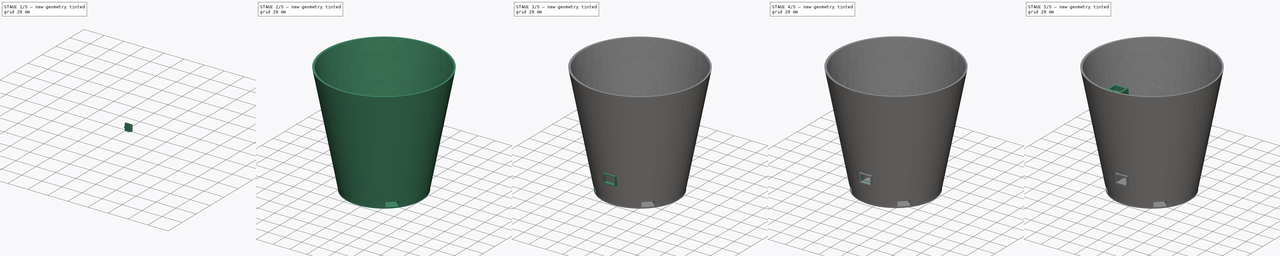
[diagram: build sequence overview — one tinted view per stage of 5, left to right]
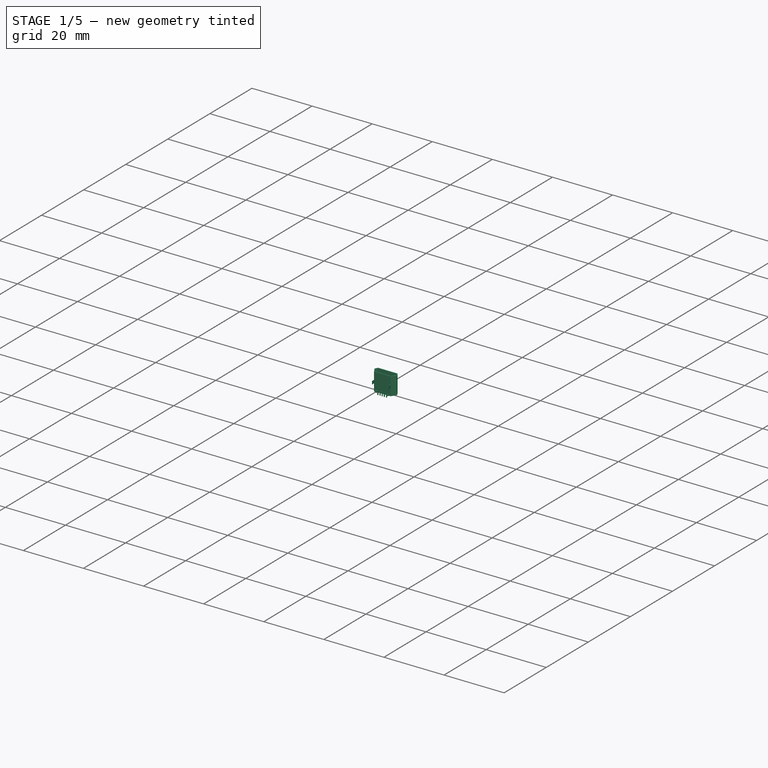
[diagram: stage 1 of 5 — iso view after this stage's code; geometry added in this stage tinted green]
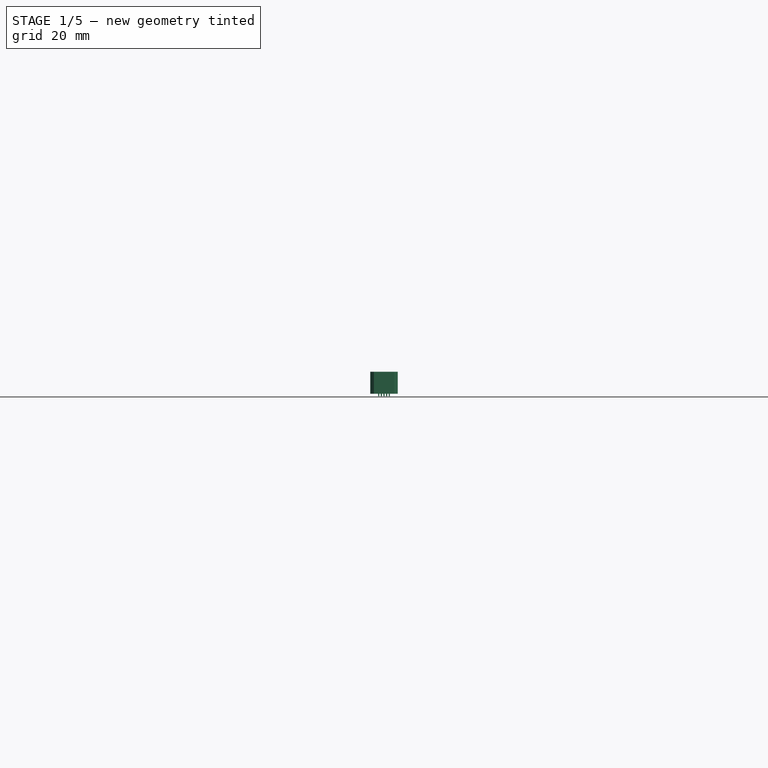
[diagram: stage 1 of 5 — front view after this stage's code; geometry added in this stage tinted green]
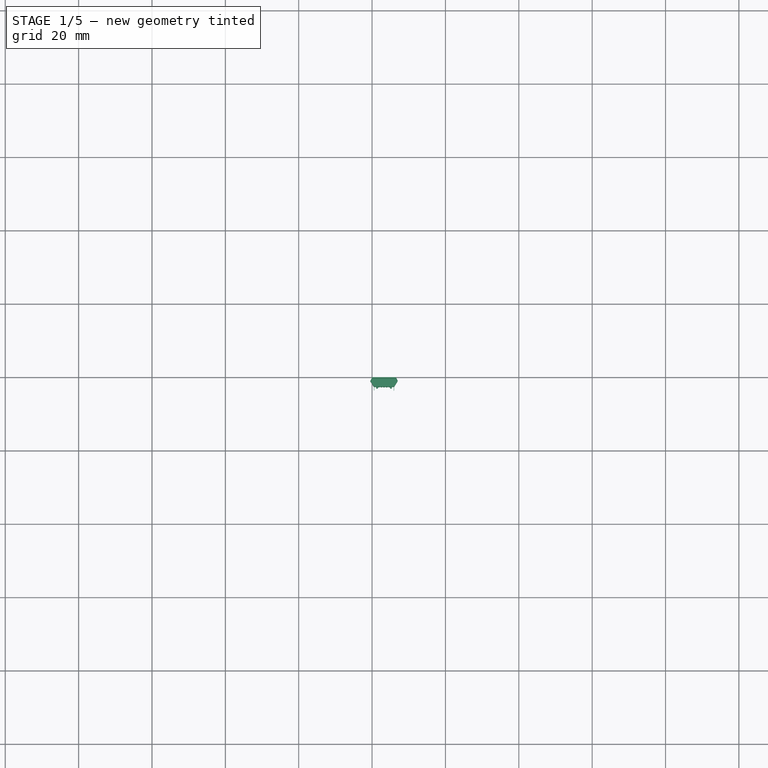
[diagram: stage 1 of 5 — top view after this stage's code; geometry added in this stage tinted green]
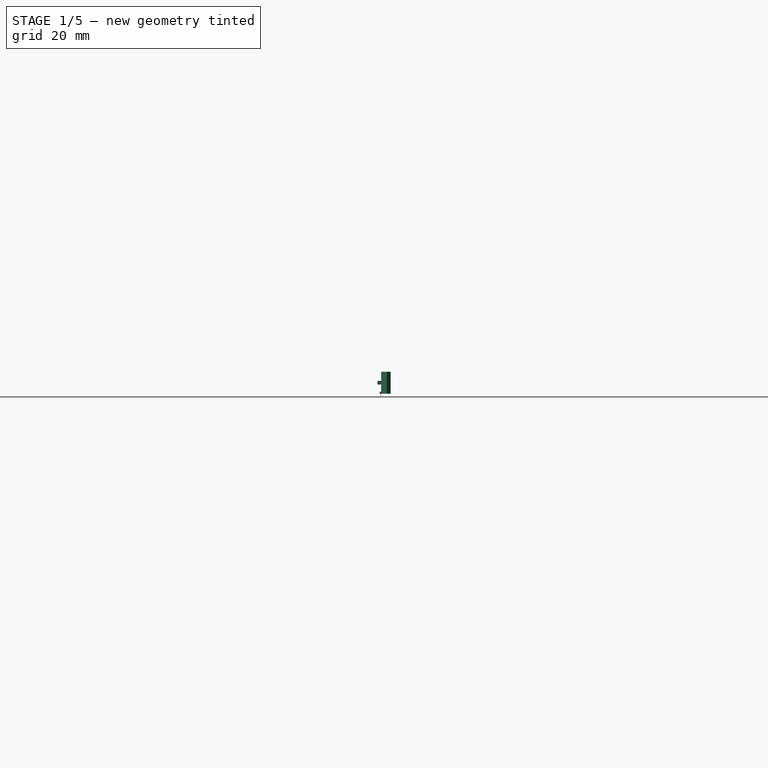
[diagram: stage 1 of 5 — right view after this stage's code; geometry added in this stage tinted green]
FCSTD DOCUMENT  (FreeCAD 0.19R19323 (Git))
Label: vase2
License: All rights reserved
LicenseURL: http://en.wikipedia.org/wiki/All_rights_reserved
objects: Sketcher::SketchObject×29, PartDesign::Pad×13, PartDesign::Pocket×9, PartDesign::Body×3, PartDesign::AdditiveLoft×2, PartDesign::ShapeBinder×2, PartDesign::Groove×1, PartDesign::Thickness×1, PartDesign::SubtractivePipe×1
note: 87 computed .brp shape members not serialized (recipe doc carries the construction recipe); baked Part::Feature solids carry a one-line shape summary decoded from their .brp

FEATURE [Sketcher::SketchObject] Sketch010
  MapMode = 5
  Support = -> [XY_Plane]
  sketch-geometry (12):
    g0: LineSegment StartX=0 StartY=0 StartZ=0 EndX=6.5 EndY=0 EndZ=0
    g1: LineSegment [constr] StartX=-0.5 StartY=-1 StartZ=0 EndX=7 EndY=-1 EndZ=0
    g2: LineSegment StartX=0.5 StartY=-2.6 StartZ=0 EndX=6 EndY=-2.6 EndZ=0
    g3: LineSegment StartX=0 StartY=0 StartZ=0 EndX=-0.5 EndY=-1 EndZ=0
    g4: LineSegment StartX=-0.5 StartY=-1 StartZ=0 EndX=0.5 EndY=-2.6 EndZ=0
    g5: LineSegment StartX=6 StartY=-2.6 StartZ=0 EndX=7 EndY=-1 EndZ=0
    g6: LineSegment StartX=7 StartY=-1 StartZ=0 EndX=6.5 EndY=0 EndZ=0
    g7: GeomPoint X=0 Y=0 Z=0
    g8: LineSegment [constr] StartX=0 StartY=0 StartZ=0 EndX=0 EndY=-4.23763 EndZ=0
    g9: LineSegment [constr] StartX=6.5 StartY=0 StartZ=0 EndX=6.5 EndY=-3.6855 EndZ=0
    g10: LineSegment [constr] StartX=6 StartY=-2.6 StartZ=0 EndX=6.5 EndY=-2.6 EndZ=0
    g11: LineSegment [constr] StartX=0.5 StartY=-2.6 StartZ=0 EndX=0 EndY=-2.6 EndZ=0
  constraints (31):
    c: Coincident(g0,g-1)
    c: PointOnObject(g0,g-1)
    c: DistanceX(g0,g0) = 6.5
    c: Horizontal(g1)
    c: DistanceX(g1,g1) = 7.5
    c: DistanceY(g1,g-1) = 1
    c: Horizontal(g2)
    c: DistanceX(g2,g2) = 5.5
    c: DistanceY(g2,g-1) = 2.6
    c: Coincident(g3,g-1)
    c: Coincident(g3,g1)
    c: Coincident(g4,g1)
    c: Coincident(g4,g2)
    c: Coincident(g5,g2)
    c: Coincident(g5,g1)
    c: Coincident(g6,g1)
    c: Coincident(g6,g0)
    c: PointOnObject(g7,g0)
    c: Coincident(g8,g7)
    c: Vertical(g8)
    c: PointOnObject(g7,g3)
    c: Coincident(g9,g0)
    c: Vertical(g9)
    c: Coincident(g10,g2)
    c: PointOnObject(g10,g9)
    c: Horizontal(g10)
    c: Coincident(g11,g2)
    c: Horizontal(g11)
    c: Equal(g11,g10)
    c: Equal(g3,g6)
    c: Equal(g5,g4)
FEATURE [PartDesign::Pad] Pad003
  Length = 6
  Length2 = 100
  Profile = -> Sketch010
  Type = 0
FEATURE [PartDesign::Thickness] Thickness
  Base = -> Pad003 [Face8]
  BaseFeature = -> Pad003
  Intersection = false
  Join = 0
  Mode = 0
  Reversed = true
  Value = 0.2
FEATURE [Sketcher::SketchObject] Sketch011
  ExternalGeometry = -> [Thickness]
  MapMode = 5
  Placement = pos=(0,-2.6,0) rot=(1,0,0;1.5708rad)
  Support = -> [Thickness]
  sketch-geometry (8):
    g0: LineSegment StartX=5.9 StartY=3.5 StartZ=0 EndX=6 EndY=3.5 EndZ=0
    g1: LineSegment StartX=6 StartY=3.5 StartZ=0 EndX=6 EndY=2.5 EndZ=0
    g2: LineSegment StartX=6 StartY=2.5 StartZ=0 EndX=5.9 EndY=2.5 EndZ=0
    g3: LineSegment StartX=5.9 StartY=2.5 StartZ=0 EndX=5.9 EndY=3.5 EndZ=0
    g4: LineSegment StartX=0.5 StartY=3.5 StartZ=0 EndX=0.6 EndY=3.5 EndZ=0
    g5: LineSegment StartX=0.6 StartY=3.5 StartZ=0 EndX=0.6 EndY=2.5 EndZ=0
    g6: LineSegment StartX=0.6 StartY=2.5 StartZ=0 EndX=0.5 EndY=2.5 EndZ=0
    g7: LineSegment StartX=0.5 StartY=2.5 StartZ=0 EndX=0.5 EndY=3.5 EndZ=0
  constraints (24):
    c: Coincident(g0,g1)
    c: Coincident(g1,g2)
    c: Coincident(g2,g3)
    c: Coincident(g3,g0)
    c: Horizontal(g0)
    c: Horizontal(g2)
    c: Vertical(g1)
    c: Vertical(g3)
    c: Coincident(g4,g5)
    c: Coincident(g5,g6)
    c: Coincident(g6,g7)
    c: Coincident(g7,g4)
    c: Horizontal(g4)
    c: Horizontal(g6)
    c: Vertical(g5)
    c: Vertical(g7)
    c: PointOnObject(g0,g-4)
    c: PointOnObject(g4,g-5)
    c: DistanceY(g4,g-5) = 2.5
    c: DistanceY(g0,g-4) = 2.5
    c: DistanceY(g5,g5) = 1
    c: DistanceY(g3,g3) = 1
    c: DistanceX(g2,g2) = 0.1
    c: Equal(g2,g6)
FEATURE [PartDesign::Pad] Pad004
  BaseFeature = -> Thickness
  Length = 1
  Length2 = 100
  Profile = -> Sketch011
  Type = 0
FEATURE [Sketcher::SketchObject] Sketch012
  ExternalGeometry = -> [Pad004]
  MapMode = 5
  Placement = pos=(0,-2.6,0) rot=(1,0,0;1.5708rad)
  Support = -> [Pad004]
  sketch-geometry (10):
    g0: LineSegment StartX=1.1 StartY=0.5 StartZ=0 EndX=1.6 EndY=0.5 EndZ=0
    g1: LineSegment StartX=1.6 StartY=0.5 StartZ=0 EndX=1.6 EndY=0 EndZ=0
    g2: LineSegment StartX=1.6 StartY=0 StartZ=0 EndX=1.1 EndY=0 EndZ=0
    g3: LineSegment StartX=1.1 StartY=0 StartZ=0 EndX=1.1 EndY=0.5 EndZ=0
    g4: LineSegment StartX=4.9 StartY=0.5 StartZ=0 EndX=5.4 EndY=0.5 EndZ=0
    g5: LineSegment StartX=5.4 StartY=0.5 StartZ=0 EndX=5.4 EndY=0 EndZ=0
    g6: LineSegment StartX=5.4 StartY=0 StartZ=0 EndX=4.9 EndY=0 EndZ=0
    g7: LineSegment StartX=4.9 StartY=0 StartZ=0 EndX=4.9 EndY=0.5 EndZ=0
    g8: LineSegment [constr] StartX=5.4 StartY=0 StartZ=0 EndX=6 EndY=0 EndZ=0
    g9: LineSegment [constr] StartX=1.1 StartY=0 StartZ=0 EndX=0.5 EndY=0 EndZ=0
  constraints (30):
    c: Coincident(g0,g1)
    c: Coincident(g1,g2)
    c: Coincident(g2,g3)
    c: Coincident(g3,g0)
    c: Horizontal(g0)
    c: Horizontal(g2)
    c: Vertical(g1)
    c: Vertical(g3)
    c: Coincident(g4,g5)
    c: Coincident(g5,g6)
    c: Coincident(g6,g7)
    c: Coincident(g7,g4)
    c: Horizontal(g4)
    c: Horizontal(g6)
    c: Vertical(g5)
    c: Vertical(g7)
    c: DistanceX(g0,g4) = 3.3
    c: DistanceX(g4,g4) = 0.5
    c: DistanceY(g5,g5) = 0.5
    c: Equal(g5,g1)
    c: Equal(g0,g4)
    c: Coincident(g8,g5)
    c: PointOnObject(g8,g-3)
    c: Coincident(g9,g2)
    c: PointOnObject(g9,g-4)
    c: Horizontal(g8)
    c: Horizontal(g9)
    c: Equal(g8,g9)
    c: PointOnObject(g1,g-1)
    c: PointOnObject(g5,g-1)
FEATURE [PartDesign::Pad] Pad005
  BaseFeature = -> Pad004
  Length = 0.4
  Length2 = 100
  Profile = -> Sketch012
  Type = 0
FEATURE [Sketcher::SketchObject] Sketch013
  ExternalGeometry = -> [Pad005]
  MapMode = 5
  Placement = pos=(0,-2.6,0) rot=(1,0,0;1.5708rad)
  Support = -> [Pad005]
  sketch-geometry (26):
    g0: LineSegment StartX=1.65 StartY=0.65 StartZ=0 EndX=1.97 EndY=0.65 EndZ=0
    g1: LineSegment StartX=1.97 StartY=0.65 StartZ=0 EndX=1.97 EndY=-0.7 EndZ=0
    g2: LineSegment StartX=1.97 StartY=-0.7 StartZ=0 EndX=1.65 EndY=-0.7 EndZ=0
    g3: LineSegment StartX=1.65 StartY=-0.7 StartZ=0 EndX=1.65 EndY=0.65 EndZ=0
    g4: LineSegment StartX=2.37 StartY=0.65 StartZ=0 EndX=2.69 EndY=0.65 EndZ=0
    g5: LineSegment StartX=2.69 StartY=0.65 StartZ=0 EndX=2.69 EndY=-0.7 EndZ=0
    g6: LineSegment StartX=2.69 StartY=-0.7 StartZ=0 EndX=2.37 EndY=-0.7 EndZ=0
    g7: LineSegment StartX=2.37 StartY=-0.7 StartZ=0 EndX=2.37 EndY=0.65 EndZ=0
    g8: LineSegment StartX=3.09 StartY=0.65 StartZ=0 EndX=3.41 EndY=0.65 EndZ=0
    g9: LineSegment StartX=3.41 StartY=0.65 StartZ=0 EndX=3.41 EndY=-0.7 EndZ=0
    g10: LineSegment StartX=3.41 StartY=-0.7 StartZ=0 EndX=3.09 EndY=-0.7 EndZ=0
    g11: LineSegment StartX=3.09 StartY=-0.7 StartZ=0 EndX=3.09 EndY=0.65 EndZ=0
    g12: LineSegment StartX=3.81 StartY=0.65 StartZ=0 EndX=4.13 EndY=0.65 EndZ=0
    g13: LineSegment StartX=4.13 StartY=0.65 StartZ=0 EndX=4.13 EndY=-0.7 EndZ=0
    g14: LineSegment StartX=4.13 StartY=-0.7 StartZ=0 EndX=3.81 EndY=-0.7 EndZ=0
    g15: LineSegment StartX=3.81 StartY=-0.7 StartZ=0 EndX=3.81 EndY=0.65 EndZ=0
    g16: LineSegment StartX=4.53 StartY=0.65 StartZ=0 EndX=4.85 EndY=0.65 EndZ=0
    g17: LineSegment StartX=4.85 StartY=0.65 StartZ=0 EndX=4.85 EndY=-0.7 EndZ=0
    g18: LineSegment StartX=4.85 StartY=-0.7 StartZ=0 EndX=4.53 EndY=-0.7 EndZ=0
    g19: LineSegment StartX=4.53 StartY=-0.7 StartZ=0 EndX=4.53 EndY=0.65 EndZ=0
    g20: LineSegment [constr] StartX=1.97 StartY=0.65 StartZ=0 EndX=2.37 EndY=0.65 EndZ=0
    g21: LineSegment [constr] StartX=2.69 StartY=0.65 StartZ=0 EndX=3.09 EndY=0.65 EndZ=0
    g22: LineSegment [constr] StartX=3.41 StartY=0.65 StartZ=0 EndX=3.81 EndY=0.65 EndZ=0
    g23: LineSegment [constr] StartX=4.13 StartY=0.65 StartZ=0 EndX=4.53 EndY=0.65 EndZ=0
    g24: LineSegment [constr] StartX=1.65 StartY=0.65 StartZ=0 EndX=0.5 EndY=0.65 EndZ=0
    g25: LineSegment [constr] StartX=4.85 StartY=0.65 StartZ=0 EndX=6 EndY=0.65 EndZ=0
  constraints (74):
    c: Coincident(g0,g1)
    c: Coincident(g1,g2)
    c: Coincident(g2,g3)
    c: Coincident(g3,g0)
    c: Horizontal(g0)
    c: Horizontal(g2)
    c: Vertical(g1)
    c: Vertical(g3)
    c: Coincident(g4,g5)
    c: Coincident(g5,g6)
    c: Coincident(g6,g7)
    c: Coincident(g7,g4)
    c: Horizontal(g4)
    c: Horizontal(g6)
    c: Vertical(g5)
    c: Vertical(g7)
    c: Coincident(g8,g9)
    c: Coincident(g9,g10)
    c: Coincident(g10,g11)
    c: Coincident(g11,g8)
    c: Horizontal(g8)
    c: Horizontal(g10)
    c: Vertical(g9)
    c: Vertical(g11)
    c: Coincident(g12,g13)
    c: Coincident(g13,g14)
    c: Coincident(g14,g15)
    c: Coincident(g15,g12)
    c: Horizontal(g12)
    c: Horizontal(g14)
    c: Vertical(g13)
    c: Vertical(g15)
    c: Coincident(g16,g17)
    c: Coincident(g17,g18)
    c: Coincident(g18,g19)
    c: Coincident(g19,g16)
    c: Horizontal(g16)
    c: Horizontal(g18)
    c: Vertical(g17)
    c: Vertical(g19)
    c: DistanceX(g0,g0) = 0.32
    c: Equal(g0,g4)
    c: Equal(g4,g8)
    c: Equal(g8,g12)
    c: Equal(g12,g16)
    c: Equal(g17,g13)
    c: Equal(g13,g9)
    c: Equal(g9,g5)
    c: Equal(g5,g1)
    c: Coincident(g20,g0)
    c: Coincident(g20,g4)
    c: Coincident(g21,g4)
    c: Coincident(g21,g8)
    c: Coincident(g22,g8)
    c: Coincident(g23,g12)
    c: Coincident(g23,g16)
    c: Horizontal(g20)
    c: Horizontal(g21)
    c: Horizontal(g22)
    c: Horizontal(g23)
    c: Coincident(g22,g12)
    c: DistanceX(g2,g17) = 3.2
    c: Equal(g20,g21)
    c: Equal(g21,g22)
    c: Equal(g22,g23)
    c: Coincident(g24,g0)
    c: PointOnObject(g24,g-3)
    c: Horizontal(g24)
    c: Coincident(g25,g16)
    c: PointOnObject(g25,g-4)
    c: Horizontal(g25)
    c: Equal(g25,g24)
    c: DistanceY(g17,g17) = 1.35
    c: DistanceY(g17,g-4) = 0.7
FEATURE [PartDesign::Pad] Pad006
  BaseFeature = -> Pad005
  Length = 0.1
  Length2 = 100
  Profile = -> Sketch013
  Type = 0
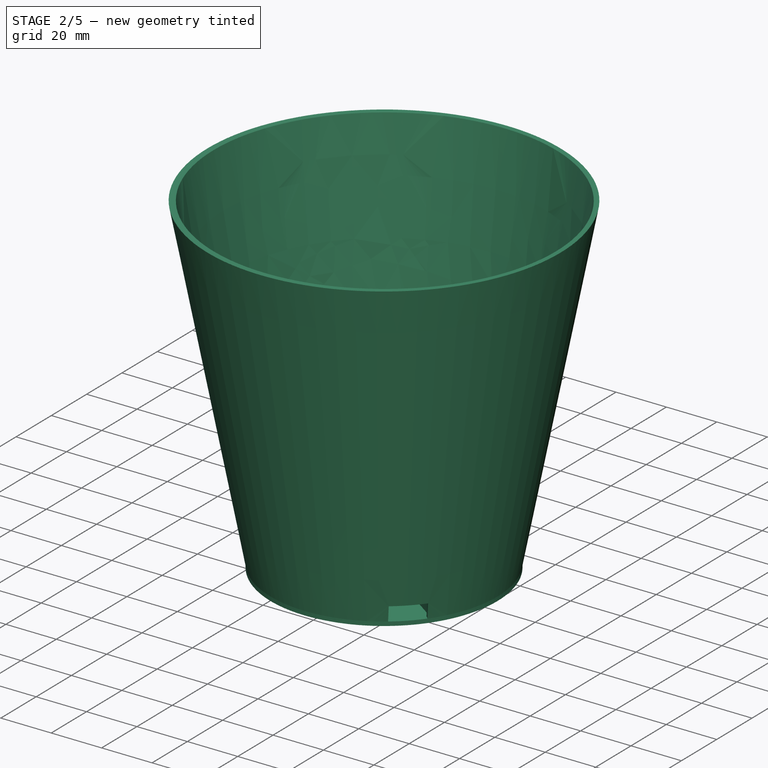
[diagram: stage 2 of 5 — iso view after this stage's code; geometry added in this stage tinted green]
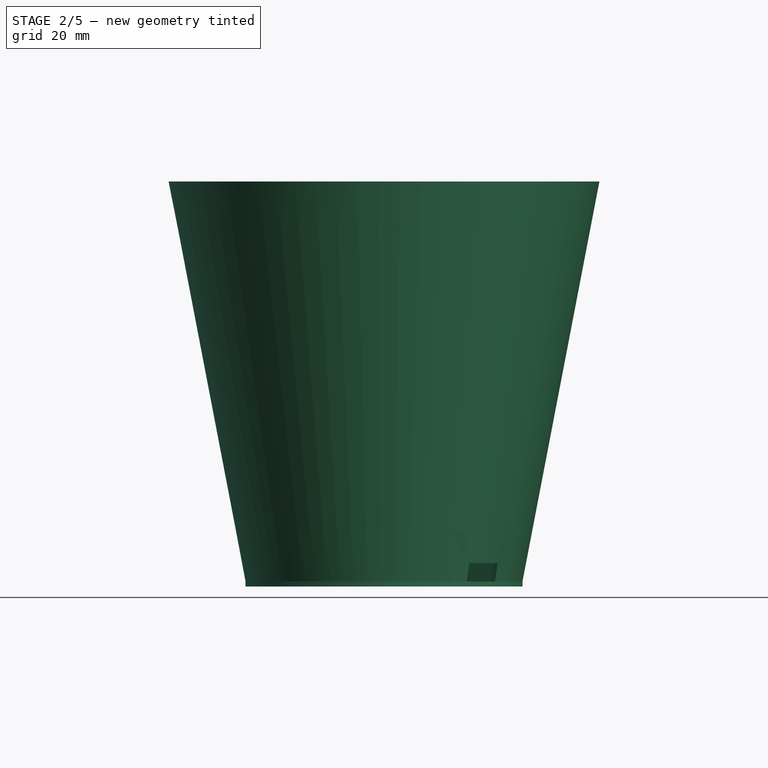
[diagram: stage 2 of 5 — front view after this stage's code; geometry added in this stage tinted green]
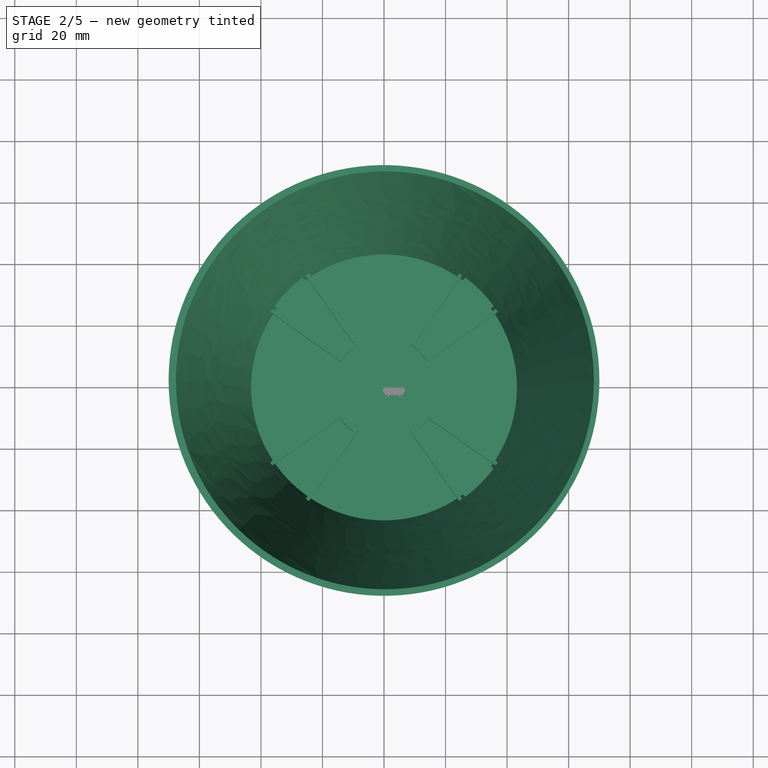
[diagram: stage 2 of 5 — top view after this stage's code; geometry added in this stage tinted green]
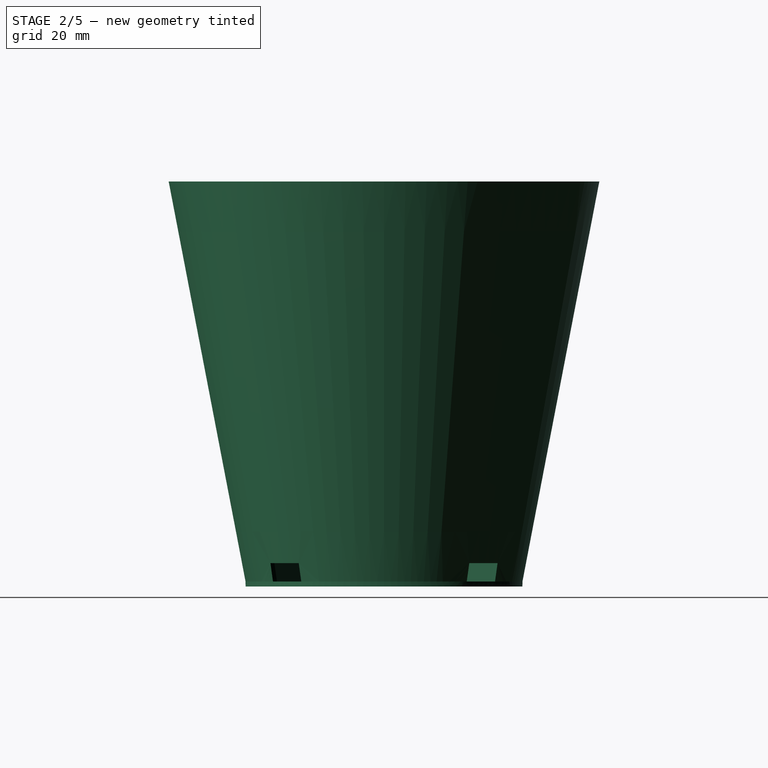
[diagram: stage 2 of 5 — right view after this stage's code; geometry added in this stage tinted green]
FEATURE [Sketcher::SketchObject] Sketch
  MapMode = 5
  Support = -> [XY_Plane001]
  sketch-geometry (1):
    g0: Circle CenterX=0 CenterY=0 CenterZ=0 NormalX=0 NormalY=0 NormalZ=1 AngleXU=0 Radius=45
  constraints (2):
    c: Coincident(g0,g-1)
    c: Diameter(g0) = 90
FEATURE [PartDesign::Pad] Pad
  Length = 1.6
  Length2 = 100
  Profile = -> Sketch
  Reversed = true
  Type = 0
FEATURE [Sketcher::SketchObject] Sketch001
  ExternalGeometry = -> [Pad]
  MapMode = 5
  Support = -> [Pad]
  sketch-geometry (4):
    g0: Circle CenterX=0 CenterY=0 CenterZ=0 NormalX=0 NormalY=0 NormalZ=1 AngleXU=0 Radius=45
    g1: Circle CenterX=0 CenterY=0 CenterZ=0 NormalX=0 NormalY=0 NormalZ=1 AngleXU=0 Radius=43.2
    g2: GeomPoint X=43.2 Y=0 Z=0
    g3: GeomPoint X=45 Y=0 Z=0
  constraints (8):
    c: Coincident(g0,g-1)
    c: Equal(g0,g-3)
    c: Coincident(g1,g0)
    c: PointOnObject(g2,g1)
    c: PointOnObject(g3,g0)
    c: PointOnObject(g2,g-1)
    c: PointOnObject(g3,g-1)
    c: DistanceX(g2,g3) = 1.8
FEATURE [Sketcher::SketchObject] Sketch002
  AttachmentOffset = pos=(0,0,130) rot=(0,0,1;0rad)
  MapMode = 5
  Placement = pos=(0,0,130) rot=(0,0,1;0rad)
  Support = -> [Pad]
  sketch-geometry (4):
    g0: Circle CenterX=0 CenterY=0 CenterZ=0 NormalX=0 NormalY=0 NormalZ=1 AngleXU=0 Radius=70
    g1: Circle CenterX=0.295828 CenterY=0.0341492 CenterZ=0 NormalX=0 NormalY=0 NormalZ=1 AngleXU=0 Radius=67.9042
    g2: GeomPoint X=68.2 Y=0 Z=0
    g3: GeomPoint X=70 Y=0 Z=0
  constraints (7):
    c: Coincident(g0,g-1)
    c: Diameter(g0) = 140
    c: PointOnObject(g2,g1)
    c: PointOnObject(g3,g0)
    c: PointOnObject(g2,g-1)
    c: PointOnObject(g3,g-1)
    c: DistanceX(g2,g3) = 1.8
FEATURE [PartDesign::AdditiveLoft] AdditiveLoft
  BaseFeature = -> Pad
  Closed = false
  Profile = -> Sketch001
  Ruled = false
  Sections = -> [Sketch002]
FEATURE [Sketcher::SketchObject] Sketch003
  AttachmentOffset = pos=(0,0,0) rot=(0,0,1;0.785398rad)
  ExternalGeometry = -> [Pad]
  MapMode = 5
  Placement = pos=(0,0,0) rot=(0,0,1;0.785398rad)
  Support = -> [Pad]
  sketch-geometry (54):
    g0: ArcOfCircle [constr] CenterX=0 CenterY=0 CenterZ=0 NormalX=0 NormalY=0 NormalZ=1 AngleXU=0 Radius=45 StartAngle=4.53786 EndAngle=4.88692
    g1: LineSegment [constr] StartX=0 StartY=0 StartZ=0 EndX=-7.81417 EndY=-44.3163 EndZ=0
    g2: LineSegment [constr] StartX=0 StartY=0 StartZ=0 EndX=7.81417 EndY=-44.3163 EndZ=0
    g3: ArcOfCircle CenterX=0 CenterY=0 CenterZ=0 NormalX=0 NormalY=0 NormalZ=1 AngleXU=0 Radius=17.4738 StartAngle=4.53786 EndAngle=4.88692
    g4: LineSegment StartX=-8.99316 StartY=-44.0922 StartZ=0 EndX=-4 EndY=-15.7746 EndZ=0
    g5: LineSegment StartX=8.99316 StartY=-44.0922 StartZ=0 EndX=4 EndY=-15.7746 EndZ=0
    g6: LineSegment [constr] StartX=6.00733 StartY=-34.0693 StartZ=0 EndX=7.1891 EndY=-33.8609 EndZ=0
    g7: LineSegment [constr] StartX=-6.02209 StartY=-34.153 StartZ=0 EndX=-7.20386 EndY=-33.9446 EndZ=0
    g8: ArcOfCircle CenterX=0 CenterY=0 CenterZ=0 NormalX=0 NormalY=0 NormalZ=1 AngleXU=0 Radius=16.2738 StartAngle=4.46405 EndAngle=4.96073
    g9: GeomPoint X=0 Y=-17.4738 Z=0
    g10: GeomPoint X=0 Y=-16.2738 Z=0
    g11: LineSegment [constr] StartX=0 StartY=-16.2738 StartZ=0 EndX=0 EndY=-17.4738 EndZ=0
    g12: LineSegment StartX=3.0343 StartY=-17.2084 StartZ=0 EndX=7.81417 EndY=-44.3163 EndZ=0
    g13: LineSegment StartX=-3.0343 StartY=-17.2084 StartZ=0 EndX=-7.81417 EndY=-44.3163 EndZ=0
    g14: ArcOfCircle CenterX=0 CenterY=0 CenterZ=0 NormalX=0 NormalY=0 NormalZ=1 AngleXU=0 Radius=45 StartAngle=4.51119 EndAngle=4.53786
    g15: ArcOfCircle CenterX=0 CenterY=0 CenterZ=0 NormalX=0 NormalY=0 NormalZ=1 AngleXU=0 Radius=45 StartAngle=4.88692 EndAngle=4.91359
    g16: ArcOfCircle [constr] CenterX=0 CenterY=0 CenterZ=0 NormalX=0 NormalY=0 NormalZ=1 AngleXU=0 Radius=45 StartAngle=1.39626 EndAngle=1.74533
    g17: ArcOfCircle CenterX=0 CenterY=0 CenterZ=0 NormalX=0 NormalY=0 NormalZ=1 AngleXU=0 Radius=17.4738 StartAngle=1.39626 EndAngle=1.74533
    g18: LineSegment StartX=-8.99316 StartY=44.0922 StartZ=0 EndX=-4 EndY=15.7746 EndZ=0
    g19: LineSegment StartX=8.99316 StartY=44.0922 StartZ=0 EndX=4 EndY=15.7746 EndZ=0
    g20: LineSegment [constr] StartX=6.00733 StartY=34.0693 StartZ=0 EndX=7.1891 EndY=33.8609 EndZ=0
    g21: LineSegment [constr] StartX=-6.02238 StartY=34.1546 StartZ=0 EndX=-7.20415 EndY=33.9462 EndZ=0
    g22: ArcOfCircle CenterX=0 CenterY=0 CenterZ=0 NormalX=0 NormalY=0 NormalZ=1 AngleXU=0 Radius=16.2738 StartAngle=1.32246 EndAngle=1.81913
    g23: GeomPoint X=0 Y=17.4738 Z=0
    g24: GeomPoint X=0 Y=16.2738 Z=0
    g25: LineSegment [constr] StartX=0 StartY=16.2738 StartZ=0 EndX=0 EndY=17.4738 EndZ=0
    g26: LineSegment StartX=3.0343 StartY=17.2084 StartZ=0 EndX=7.81417 EndY=44.3163 EndZ=0
    g27: LineSegment StartX=-3.0343 StartY=17.2084 StartZ=0 EndX=-7.81417 EndY=44.3163 EndZ=0
    g28: ArcOfCircle CenterX=0 CenterY=0 CenterZ=0 NormalX=0 NormalY=0 NormalZ=1 AngleXU=0 Radius=45 StartAngle=1.74533 EndAngle=1.772
    g29: ArcOfCircle CenterX=0 CenterY=0 CenterZ=0 NormalX=0 NormalY=0 NormalZ=1 AngleXU=0 Radius=45 StartAngle=1.36959 EndAngle=1.39626
    g30: LineSegment [constr] StartX=44.3163 StartY=7.81433 StartZ=0 EndX=0 EndY=0 EndZ=0
    g31: LineSegment [constr] StartX=0 StartY=0 StartZ=0 EndX=44.3163 EndY=-7.81433 EndZ=0
    g32: ArcOfCircle CenterX=0 CenterY=0 CenterZ=0 NormalX=0 NormalY=0 NormalZ=1 AngleXU=0 Radius=45 StartAngle=0.174537 EndAngle=0.201206
    g33: ArcOfCircle CenterX=0 CenterY=0 CenterZ=0 NormalX=0 NormalY=0 NormalZ=1 AngleXU=0 Radius=45 StartAngle=6.08198 EndAngle=6.10865
    g34: LineSegment StartX=44.0922 StartY=8.99332 StartZ=0 EndX=15.7743 EndY=4 EndZ=0
    g35: LineSegment StartX=44.0922 StartY=-8.99332 StartZ=0 EndX=15.7743 EndY=-4 EndZ=0
    g36: LineSegment StartX=44.3163 StartY=7.81433 StartZ=0 EndX=17.208 EndY=3.03431 EndZ=0
    g37: LineSegment StartX=44.3163 StartY=-7.81433 StartZ=0 EndX=17.208 EndY=-3.03431 EndZ=0
    g38: ArcOfCircle CenterX=0 CenterY=0 CenterZ=0 NormalX=0 NormalY=0 NormalZ=1 AngleXU=0 Radius=16.2735 StartAngle=6.03484 EndAngle=6.53153
    g39: ArcOfCircle CenterX=0 CenterY=0 CenterZ=0 NormalX=0 NormalY=0 NormalZ=1 AngleXU=0 Radius=17.4735 StartAngle=6.10865 EndAngle=6.45772
    g40: LineSegment [constr] StartX=34.9201 StartY=6.15748 StartZ=0 EndX=34.7117 EndY=7.33925 EndZ=0
    g41: LineSegment [constr] StartX=35.9438 StartY=-6.33799 StartZ=0 EndX=35.7354 EndY=-7.51976 EndZ=0
    g42: LineSegment [constr] StartX=17.4735 StartY=0 StartZ=0 EndX=16.2735 EndY=0 EndZ=0
    g43: ArcOfCircle CenterX=0 CenterY=0 CenterZ=0 NormalX=0 NormalY=0 NormalZ=1 AngleXU=0 Radius=45 StartAngle=2.94039 EndAngle=2.96706
    g44: ArcOfCircle CenterX=0 CenterY=0 CenterZ=0 NormalX=0 NormalY=0 NormalZ=1 AngleXU=0 Radius=45 StartAngle=3.31613 EndAngle=3.3428
    g45: LineSegment StartX=-44.0922 StartY=8.99332 StartZ=0 EndX=-15.7743 EndY=4 EndZ=0
    g46: LineSegment StartX=-44.0922 StartY=-8.99332 StartZ=0 EndX=-15.7743 EndY=-4 EndZ=0
    g47: LineSegment StartX=-44.3163 StartY=7.81433 StartZ=0 EndX=-17.208 EndY=3.03431 EndZ=0
    g48: LineSegment StartX=-44.3163 StartY=-7.81433 StartZ=0 EndX=-17.208 EndY=-3.03431 EndZ=0
    g49: ArcOfCircle CenterX=0 CenterY=0 CenterZ=0 NormalX=0 NormalY=0 NormalZ=1 AngleXU=0 Radius=16.2735 StartAngle=2.89325 EndAngle=3.38994
    g50: ArcOfCircle CenterX=0 CenterY=0 CenterZ=0 NormalX=0 NormalY=0 NormalZ=1 AngleXU=0 Radius=17.4735 StartAngle=2.96706 EndAngle=3.31613
    g51: LineSegment [constr] StartX=-34.9201 StartY=6.15748 StartZ=0 EndX=-34.7117 EndY=7.33925 EndZ=0
    g52: LineSegment [constr] StartX=-35.9438 StartY=-6.33799 StartZ=0 EndX=-35.7354 EndY=-7.51976 EndZ=0
    g53: LineSegment [constr] StartX=-17.4735 StartY=0 StartZ=0 EndX=-16.2735 EndY=0 EndZ=0
  constraints (119):
    c: Coincident(g0,g-1)
    c: PointOnObject(g0,g-3)
    c: Coincident(g1,g-1)
    c: Coincident(g1,g0)
    c: Coincident(g2,g-1)
    c: Coincident(g2,g0)
    c: Symmetric(g0,g0,g-2)
    c: Coincident(g3,g-1)
    c: PointOnObject(g3,g1)
    c: Parallel(g2,g5)
    c: Parallel(g1,g4)
    c: PointOnObject(g6,g2)
    c: PointOnObject(g6,g5)
    c: PointOnObject(g7,g1)
    c: PointOnObject(g7,g4)
    c: Perpendicular(g6,g2)
    c: Perpendicular(g1,g7)
    c: Distance(g6) = 1.2
    c: Angle(g1,g2) = 0.349066
    c: PointOnObject(g3,g2)
    c: Coincident(g8,g3)
    c: Coincident(g8,g4)
    c: Coincident(g8,g5)
    c: Equal(g6,g7)
    c: PointOnObject(g9,g3)
    c: PointOnObject(g10,g8)
    c: PointOnObject(g9,g-2)
    c: PointOnObject(g10,g-2)
    c: DistanceX(g4,g5) = 8
    c: Coincident(g11,g10)
    c: Coincident(g11,g9)
    c: Equal(g11,g7)
    c: Coincident(g12,g3)
    c: Coincident(g12,g0)
    c: Coincident(g13,g3)
    c: Coincident(g13,g0)
    c: Coincident(g14,g3)
    c: Coincident(g14,g4)
    c: Coincident(g14,g13)
    c: Coincident(g15,g3)
    c: Coincident(g15,g12)
    c: Coincident(g5,g15)
    c: PointOnObject(g20,g19)
    c: PointOnObject(g21,g18)
    c: Distance(g20) = 1.2
    c: Coincident(g22,g17)
    c: Coincident(g22,g18)
    c: Coincident(g22,g19)
    c: Equal(g20,g21)
    c: PointOnObject(g23,g17)
    c: PointOnObject(g24,g22)
    c: Coincident(g25,g24)
    c: Coincident(g25,g23)
    c: Equal(g25,g21)
    c: Coincident(g26,g17)
    c: Coincident(g26,g16)
    c: Coincident(g27,g17)
    c: Coincident(g27,g16)
    c: Coincident(g28,g17)
    c: Coincident(g28,g18)
    c: Coincident(g28,g27)
    c: Coincident(g29,g17)
    c: Coincident(g29,g26)
    c: Coincident(g19,g29)
    c: PointOnObject(g30,g-3)
    c: Coincident(g30,g3)
    c: Coincident(g31,g3)
    c: Coincident(g32,g3)
    c: Coincident(g32,g30)
    c: Coincident(g33,g3)
    c: Coincident(g33,g31)
    c: Coincident(g34,g32)
    c: Coincident(g35,g33)
    c: Parallel(g35,g31)
    c: Parallel(g34,g30)
    c: Coincident(g36,g32)
    c: Coincident(g37,g33)
    c: PointOnObject(g37,g31)
    c: PointOnObject(g36,g30)
    c: Coincident(g38,g3)
    c: Coincident(g38,g34)
    c: Coincident(g38,g35)
    c: Coincident(g39,g3)
    c: Coincident(g39,g36)
    c: Coincident(g39,g37)
    c: PointOnObject(g40,g36)
    c: PointOnObject(g40,g34)
    c: PointOnObject(g41,g37)
    c: PointOnObject(g41,g35)
    c: PointOnObject(g42,g39)
    c: Horizontal(g42)
    c: PointOnObject(g42,g38)
    c: PointOnObject(g42,g-1)
    c: Perpendicular(g36,g40)
    c: Perpendicular(g37,g41)
    c: Equal(g42,g40)
    c: Equal(g40,g41)
    c: Equal(g11,g42)
    c: DistanceY(g35,g34) = 8
    c: Symmetric(g32,g33,g-1)
    c: Coincident(g45,g43)
    c: Coincident(g46,g44)
    c: Coincident(g47,g43)
    c: Coincident(g48,g44)
    c: Coincident(g49,g45)
    c: Coincident(g49,g46)
    c: Coincident(g50,g47)
    c: Coincident(g50,g48)
    c: PointOnObject(g51,g47)
    c: PointOnObject(g51,g45)
    c: PointOnObject(g52,g48)
    c: PointOnObject(g52,g46)
    c: PointOnObject(g53,g50)
    c: Horizontal(g53)
    c: PointOnObject(g53,g49)
    c: Perpendicular(g47,g51)
    c: Perpendicular(g48,g52)
    c: Equal(g53,g51)
    c: Equal(g51,g52)
FEATURE [PartDesign::Pad] Pad001
  BaseFeature = -> AdditiveLoft
  Length = 6
  Length2 = 100
  Profile = -> Sketch003
  Type = 0
FEATURE [Sketcher::SketchObject] Sketch004
  AttachmentOffset = pos=(33,0,33) rot=(0,1,0;0.785398rad)
  MapMode = 5
  Placement = pos=(33,-33,-7.3e-15) rot=(0.862856,0.357407,0.357407;1.71777rad)
  Support = -> [XZ_Plane001]
  sketch-geometry (4):
    g0: LineSegment StartX=-6.5 StartY=0 StartZ=0 EndX=6.5 EndY=0 EndZ=0
    g1: LineSegment StartX=6.5 StartY=0 StartZ=0 EndX=6.5 EndY=6 EndZ=0
    g2: LineSegment StartX=6.5 StartY=6 StartZ=0 EndX=-6.5 EndY=6 EndZ=0
    g3: LineSegment StartX=-6.5 StartY=6 StartZ=0 EndX=-6.5 EndY=0 EndZ=0
  constraints (11):
    c: Coincident(g0,g1)
    c: Coincident(g1,g2)
    c: Coincident(g2,g3)
    c: Coincident(g3,g0)
    c: Horizontal(g0)
    c: Vertical(g1)
    c: Vertical(g3)
    c: PointOnObject(g0,g-1)
    c: Symmetric(g2,g1,g-2)
    c: DistanceY(g1,g1) = 6
    c: DistanceX(g2,g2) = 13
FEATURE [PartDesign::Pocket] Pocket
  BaseFeature = -> Pad001
  Length = 5
  Length2 = 100
  Profile = -> Sketch004
  Type = 0
FEATURE [Sketcher::SketchObject] Sketch005
  AttachmentOffset = pos=(-33,0,-33) rot=(0,1,0;0.785398rad)
  MapMode = 5
  Placement = pos=(-33,33,7.3e-15) rot=(0.862856,0.357407,0.357407;1.71777rad)
  Support = -> [XZ_Plane001]
  sketch-geometry (4):
    g0: LineSegment StartX=-6.5 StartY=0 StartZ=0 EndX=6.5 EndY=0 EndZ=0
    g1: LineSegment StartX=6.5 StartY=0 StartZ=0 EndX=6.5 EndY=6 EndZ=0
    g2: LineSegment StartX=6.5 StartY=6 StartZ=0 EndX=-6.5 EndY=6 EndZ=0
    g3: LineSegment StartX=-6.5 StartY=6 StartZ=0 EndX=-6.5 EndY=0 EndZ=0
  constraints (11):
    c: Coincident(g0,g1)
    c: Coincident(g1,g2)
    c: Coincident(g2,g3)
    c: Coincident(g3,g0)
    c: Horizontal(g0)
    c: Vertical(g1)
    c: Vertical(g3)
    c: PointOnObject(g0,g-1)
    c: Symmetric(g2,g1,g-2)
    c: DistanceY(g1,g1) = 6
    c: DistanceX(g2,g2) = 13
FEATURE [PartDesign::Pocket] Pocket001
  BaseFeature = -> Pocket
  Length = 6
  Length2 = 100
  Profile = -> Sketch005
  Reversed = true
  Type = 0
FEATURE [Sketcher::SketchObject] Sketch006
  AttachmentOffset = pos=(33,0,33) rot=(0,1,0;0.785398rad)
  MapMode = 5
  Placement = pos=(33,33,0) rot=(0.281085,0.678598,0.678598;2.59356rad)
  Support = -> [YZ_Plane001]
  sketch-geometry (4):
    g0: LineSegment StartX=-6.5 StartY=0 StartZ=0 EndX=6.5 EndY=0 EndZ=0
    g1: LineSegment StartX=6.5 StartY=0 StartZ=0 EndX=6.5 EndY=6 EndZ=0
    g2: LineSegment StartX=6.5 StartY=6 StartZ=0 EndX=-6.5 EndY=6 EndZ=0
    g3: LineSegment StartX=-6.5 StartY=6 StartZ=0 EndX=-6.5 EndY=0 EndZ=0
  constraints (11):
    c: Coincident(g0,g1)
    c: Coincident(g1,g2)
    c: Coincident(g2,g3)
    c: Coincident(g3,g0)
    c: Horizontal(g0)
    c: Vertical(g1)
    c: Vertical(g3)
    c: PointOnObject(g0,g-1)
    c: Symmetric(g2,g1,g-2)
    c: DistanceY(g1,g1) = 6
    c: DistanceX(g2,g2) = 13
FEATURE [PartDesign::Pocket] Pocket002
  BaseFeature = -> Pocket001
  Length = 6
  Length2 = 100
  Profile = -> Sketch006
  Type = 0
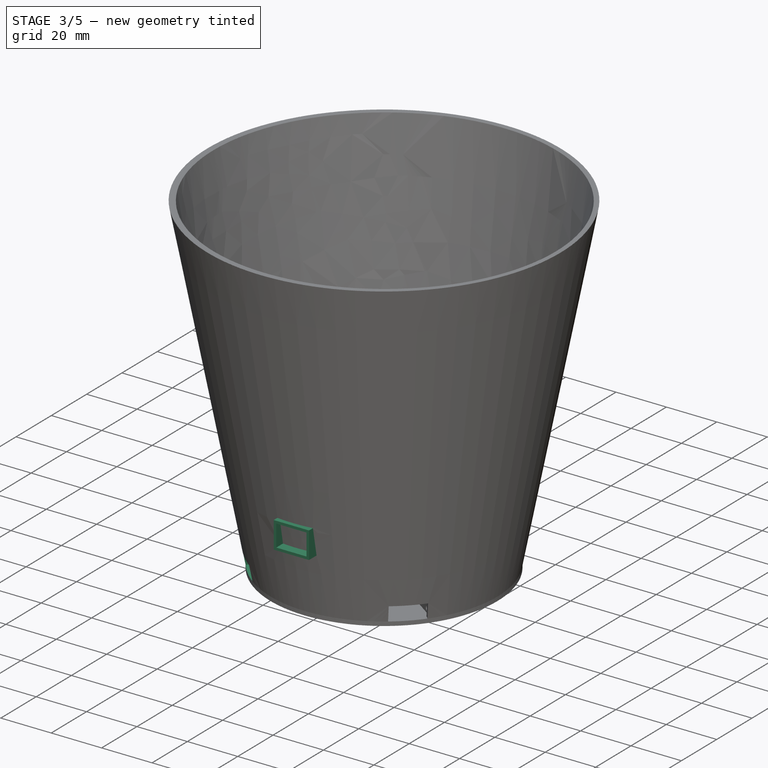
[diagram: stage 3 of 5 — iso view after this stage's code; geometry added in this stage tinted green]
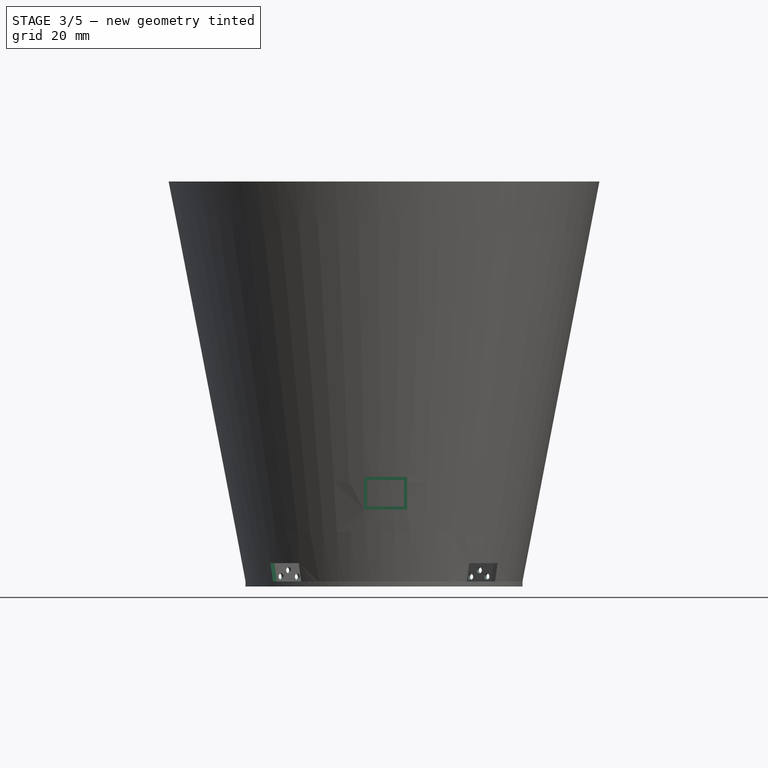
[diagram: stage 3 of 5 — front view after this stage's code; geometry added in this stage tinted green]
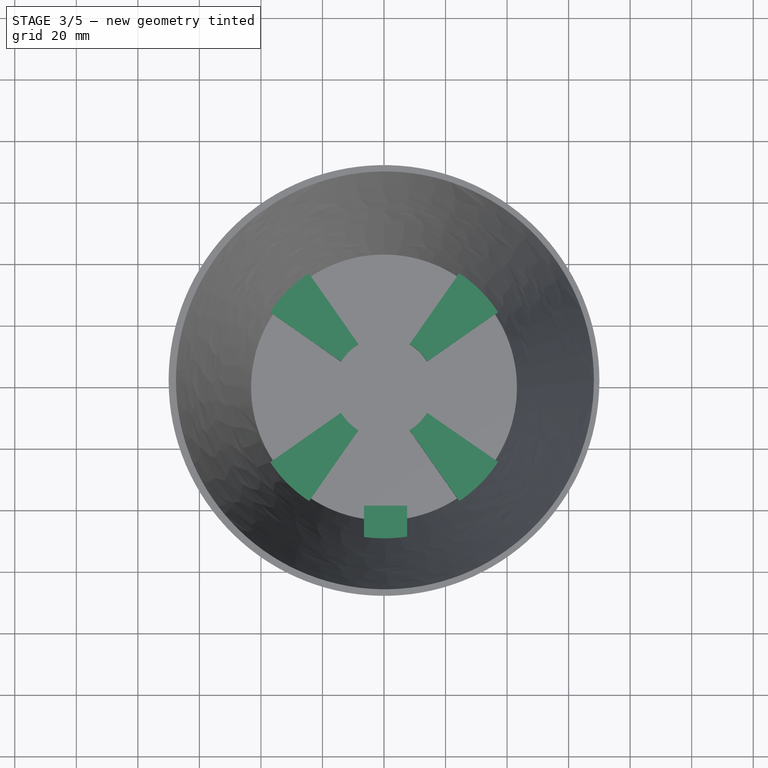
[diagram: stage 3 of 5 — top view after this stage's code; geometry added in this stage tinted green]
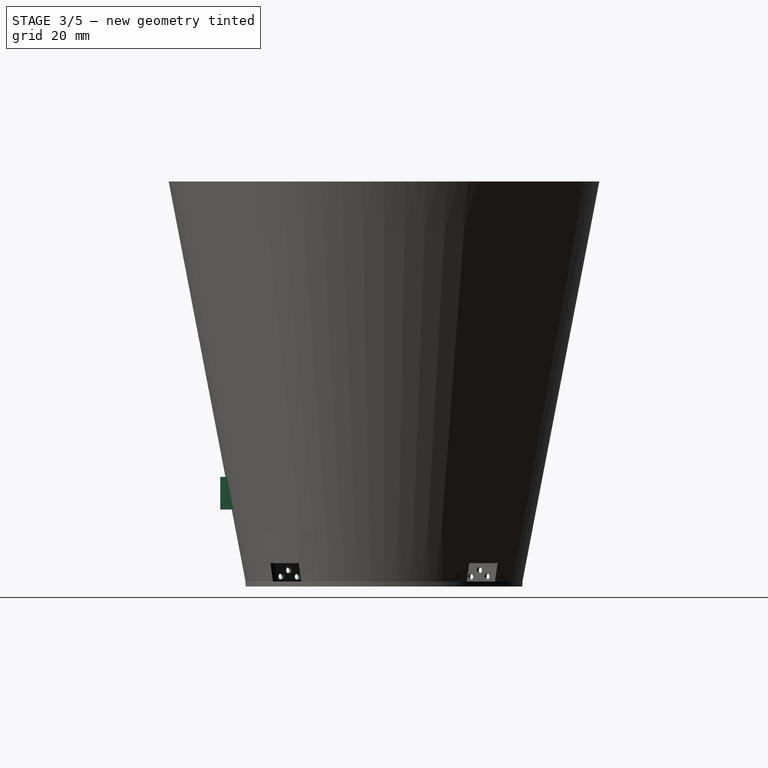
[diagram: stage 3 of 5 — right view after this stage's code; geometry added in this stage tinted green]
FEATURE [Sketcher::SketchObject] Sketch007
  AttachmentOffset = pos=(-33,0,-33) rot=(0,1,0;0.785398rad)
  MapMode = 5
  Placement = pos=(-33,-33,0) rot=(0.281085,0.678598,0.678598;2.59356rad)
  Support = -> [YZ_Plane001]
  sketch-geometry (4):
    g0: LineSegment StartX=-6.5 StartY=0 StartZ=0 EndX=6.5 EndY=0 EndZ=0
    g1: LineSegment StartX=6.5 StartY=0 StartZ=0 EndX=6.5 EndY=6 EndZ=0
    g2: LineSegment StartX=6.5 StartY=6 StartZ=0 EndX=-6.5 EndY=6 EndZ=0
    g3: LineSegment StartX=-6.5 StartY=6 StartZ=0 EndX=-6.5 EndY=0 EndZ=0
  constraints (11):
    c: Coincident(g0,g1)
    c: Coincident(g1,g2)
    c: Coincident(g2,g3)
    c: Coincident(g3,g0)
    c: Horizontal(g0)
    c: Vertical(g1)
    c: Vertical(g3)
    c: PointOnObject(g0,g-1)
    c: DistanceY(g1,g1) = 6
    c: Symmetric(g2,g1,g-2)
    c: DistanceX(g2,g2) = 13
FEATURE [PartDesign::Pocket] Pocket003
  BaseFeature = -> Pocket002
  Length = 6
  Length2 = 100
  Profile = -> Sketch007
  Reversed = true
  Type = 0
FEATURE [Sketcher::SketchObject] Sketch008
  ExternalGeometry = -> [Pocket003]
  MapMode = 5
  Placement = pos=(1e-15,1.5e-15,0) rot=(0.913318,-0.287968,-0.287968;1.66134rad)
  Support = -> [Pocket003]
  sketch-geometry (7):
    g0: Circle CenterX=18.8023 CenterY=1.56183 CenterZ=0 NormalX=0 NormalY=0 NormalZ=1 AngleXU=0 Radius=1
    g1: Circle CenterX=23.0363 CenterY=3.80282 CenterZ=0 NormalX=0 NormalY=0 NormalZ=1 AngleXU=0 Radius=1
    g2: Circle CenterX=26.5478 CenterY=1.55476 CenterZ=0 NormalX=0 NormalY=0 NormalZ=1 AngleXU=0 Radius=1
    g3: Circle CenterX=30.6983 CenterY=3.81389 CenterZ=0 NormalX=0 NormalY=0 NormalZ=1 AngleXU=0 Radius=1
    g4: Circle CenterX=34.3581 CenterY=1.56298 CenterZ=0 NormalX=0 NormalY=0 NormalZ=1 AngleXU=0 Radius=1
    g5: Circle CenterX=37.8176 CenterY=3.67025 CenterZ=0 NormalX=0 NormalY=0 NormalZ=1 AngleXU=0 Radius=1
    g6: Circle CenterX=40.8125 CenterY=1.64469 CenterZ=0 NormalX=0 NormalY=0 NormalZ=1 AngleXU=0 Radius=1
  constraints (7):
    c: Diameter(g0) = 2
    c: Equal(g0,g1)
    c: Equal(g1,g2)
    c: Equal(g2,g3)
    c: Equal(g3,g4)
    c: Equal(g4,g5)
    c: Equal(g5,g6)
FEATURE [PartDesign::Groove] Groove
  Angle = 360
  Axis = (0,0,1)
  Base = (1e-15,1.5e-15,0)
  BaseFeature = -> Pocket003
  Profile = -> Sketch008
  ReferenceAxis = -> Sketch008 [V_Axis]
FEATURE [Sketcher::SketchObject] Sketch009
  ExternalGeometry = -> [Groove]
  MapMode = 5
  Placement = pos=(0,0,6) rot=(0,0,1;0rad)
  Support = -> [Groove]
  sketch-geometry (16):
    g0: ArcOfCircle CenterX=0 CenterY=0 CenterZ=0 NormalX=0 NormalY=0 NormalZ=1 AngleXU=0 Radius=16.2735 StartAngle=3.67865 EndAngle=4.17533
    g1: ArcOfCircle CenterX=0 CenterY=0 CenterZ=0 NormalX=0 NormalY=0 NormalZ=1 AngleXU=0 Radius=16.2738 StartAngle=5.24945 EndAngle=5.74612
    g2: ArcOfCircle CenterX=0 CenterY=0 CenterZ=0 NormalX=0 NormalY=0 NormalZ=1 AngleXU=0 Radius=16.2735 StartAngle=0.537055 EndAngle=1.03374
    g3: ArcOfCircle CenterX=0 CenterY=0 CenterZ=0 NormalX=0 NormalY=0 NormalZ=1 AngleXU=0 Radius=16.2738 StartAngle=2.10786 EndAngle=2.60453
    g4: ArcOfCircle CenterX=0 CenterY=0 CenterZ=0 NormalX=0 NormalY=0 NormalZ=1 AngleXU=0 Radius=44.3279 StartAngle=3.72538 EndAngle=4.1317
    g5: ArcOfCircle CenterX=0 CenterY=0 CenterZ=0 NormalX=0 NormalY=0 NormalZ=1 AngleXU=0 Radius=44.3464 StartAngle=5.29619 EndAngle=5.70248
    g6: ArcOfCircle CenterX=0 CenterY=0 CenterZ=0 NormalX=0 NormalY=0 NormalZ=1 AngleXU=0 Radius=44.349 StartAngle=0.580705 EndAngle=0.986996
    g7: ArcOfCircle CenterX=0 CenterY=0 CenterZ=0 NormalX=0 NormalY=0 NormalZ=1 AngleXU=0 Radius=44.334 StartAngle=2.15459 EndAngle=2.5609
    g8: LineSegment StartX=-24.4366 StartY=36.9913 StartZ=0 EndX=-8.3259 EndY=13.9828 EndZ=0
    g9: LineSegment StartX=-37.0669 StartY=24.3218 StartZ=0 EndX=-13.9828 EndY=8.3259 EndZ=0
    g10: LineSegment StartX=24.4451 StartY=37.0037 StartZ=0 EndX=8.32566 EndY=13.9825 EndZ=0
    g11: LineSegment StartX=13.9825 StartY=8.32566 StartZ=0 EndX=37.0792 EndY=24.3305 EndZ=0
    g12: LineSegment StartX=37.0769 StartY=-24.3291 StartZ=0 EndX=13.9828 EndY=-8.3259 EndZ=0
    g13: LineSegment StartX=8.3259 StartY=-13.9828 StartZ=0 EndX=24.4438 EndY=-37.0014 EndZ=0
    g14: LineSegment StartX=-8.32566 StartY=-13.9825 StartZ=0 EndX=-24.3183 EndY=-37.0619 EndZ=0
    g15: LineSegment StartX=-13.9825 StartY=-8.32566 StartZ=0 EndX=-36.9864 EndY=-24.433 EndZ=0
  constraints (36):
    c: Coincident(g0,g-1)
    c: Coincident(g0,g-6)
    c: Coincident(g0,g-5)
    c: Coincident(g1,g0)
    c: Coincident(g1,g-4)
    c: Coincident(g1,g-3)
    c: Coincident(g2,g0)
    c: Coincident(g2,g-9)
    c: Coincident(g2,g-10)
    c: Coincident(g3,g0)
    c: Coincident(g3,g-7)
    c: Coincident(g4,g0)
    c: Coincident(g4,g-6)
    c: Coincident(g5,g0)
    c: Coincident(g5,g-4)
    c: Coincident(g6,g0)
    c: Coincident(g6,g-9)
    c: Coincident(g7,g0)
    c: Coincident(g7,g-8)
    c: Coincident(g8,g7)
    c: Coincident(g8,g3)
    c: Coincident(g9,g7)
    c: Coincident(g9,g3)
    c: Coincident(g10,g6)
    c: Coincident(g10,g2)
    c: Coincident(g11,g2)
    c: Coincident(g11,g6)
    c: Coincident(g12,g5)
    c: Coincident(g12,g1)
    c: Coincident(g13,g1)
    c: Coincident(g13,g5)
    c: Coincident(g14,g0)
    c: Coincident(g14,g4)
    c: Coincident(g15,g0)
    c: Coincident(g15,g4)
    c: Coincident(g3,g-8)
FEATURE [PartDesign::Pad] Pad002
  BaseFeature = -> Groove
  Length = 1.3
  Length2 = 100
  Profile = -> Sketch009
  Type = 0
FEATURE [PartDesign::Body] Body  label="USB"
  Group = -> [Sketch010,Pad003,Thickness,Sketch011,Pad004,Sketch012,Pad005,Sketch013,Pad006]
  Origin = -> Origin
  Placement = pos=(-3,-44,30) rot=(1,0,0;1.5708rad)
  Tip = -> Pad006
FEATURE [PartDesign::ShapeBinder] ShapeBinder
  Placement = pos=(-3,-44,30) rot=(1,0,0;1.5708rad)
  Support = -> [Body]
  TraceSupport = false
FEATURE [Sketcher::SketchObject] Sketch014
  AttachmentOffset = pos=(0,0,9) rot=(0,0,1;0rad)
  ExternalGeometry = -> [ShapeBinder]
  MapMode = 5
  Placement = pos=(-3,-53.2,30) rot=(1,0,0;1.5708rad)
  Support = -> [ShapeBinder]
  sketch-geometry (8):
    g0: LineSegment StartX=-2.5 StartY=3 StartZ=0 EndX=9.5 EndY=3 EndZ=0
    g1: LineSegment StartX=9.5 StartY=3 StartZ=0 EndX=9.5 EndY=-5.6 EndZ=0
    g2: LineSegment StartX=9.5 StartY=-5.6 StartZ=0 EndX=-2.5 EndY=-5.6 EndZ=0
    g3: LineSegment StartX=-2.5 StartY=-5.6 StartZ=0 EndX=-2.5 EndY=3 EndZ=0
    g4: LineSegment StartX=-3.5 StartY=4 StartZ=0 EndX=10.5 EndY=4 EndZ=0
    g5: LineSegment StartX=10.5 StartY=4 StartZ=0 EndX=10.5 EndY=-6.6 EndZ=0
    g6: LineSegment StartX=10.5 StartY=-6.6 StartZ=0 EndX=-3.5 EndY=-6.6 EndZ=0
    g7: LineSegment StartX=-3.5 StartY=-6.6 StartZ=0 EndX=-3.5 EndY=4 EndZ=0
  constraints (24):
    c: Coincident(g0,g1)
    c: Coincident(g1,g2)
    c: Coincident(g2,g3)
    c: Coincident(g3,g0)
    c: Horizontal(g0)
    c: Horizontal(g2)
    c: Vertical(g1)
    c: Vertical(g3)
    c: Coincident(g4,g5)
    c: Coincident(g5,g6)
    c: Coincident(g6,g7)
    c: Coincident(g7,g4)
    c: Horizontal(g4)
    c: Horizontal(g6)
    c: Vertical(g5)
    c: Vertical(g7)
    c: DistanceY(g2,g-4) = 3
    c: DistanceY(g5,g1) = 1
    c: DistanceX(g1,g5) = 1
    c: DistanceX(g-3,g1) = 3
    c: DistanceX(g2,g-4) = 3
    c: DistanceX(g6,g2) = 1
    c: DistanceY(g-3,g0) = 3
    c: DistanceY(g0,g4) = 1
FEATURE [PartDesign::Pad] Pad007
  BaseFeature = -> Pad002
  Length = 13
  Length2 = 100
  Profile = -> Sketch014
  Reversed = true
  Type = 0
FEATURE [Sketcher::SketchObject] Sketch015
  ExternalGeometry = -> [Sketch014]
  MapMode = 5
  Placement = pos=(0,-40.2,0) rot=(0,0.707107,0.707107;3.14159rad)
  Support = -> [Pad007]
  sketch-geometry (4):
    g0: LineSegment StartX=-7.5 StartY=34 StartZ=0 EndX=6.5 EndY=34 EndZ=0
    g1: LineSegment StartX=6.5 StartY=34 StartZ=0 EndX=6.5 EndY=23.4 EndZ=0
    g2: LineSegment StartX=6.5 StartY=23.4 StartZ=0 EndX=-7.5 EndY=23.4 EndZ=0
    g3: LineSegment StartX=-7.5 StartY=23.4 StartZ=0 EndX=-7.5 EndY=34 EndZ=0
  constraints (10):
    c: Coincident(g0,g1)
    c: Coincident(g1,g2)
    c: Coincident(g2,g3)
    c: Coincident(g3,g0)
    c: Horizontal(g0)
    c: Horizontal(g2)
    c: Vertical(g1)
    c: Vertical(g3)
    c: Coincident(g0,g-3)
    c: Coincident(g1,g-4)
FEATURE [PartDesign::Pad] Pad008
  BaseFeature = -> Pad007
  Length = 1.2
  Length2 = 100
  Profile = -> Sketch015
  Type = 0
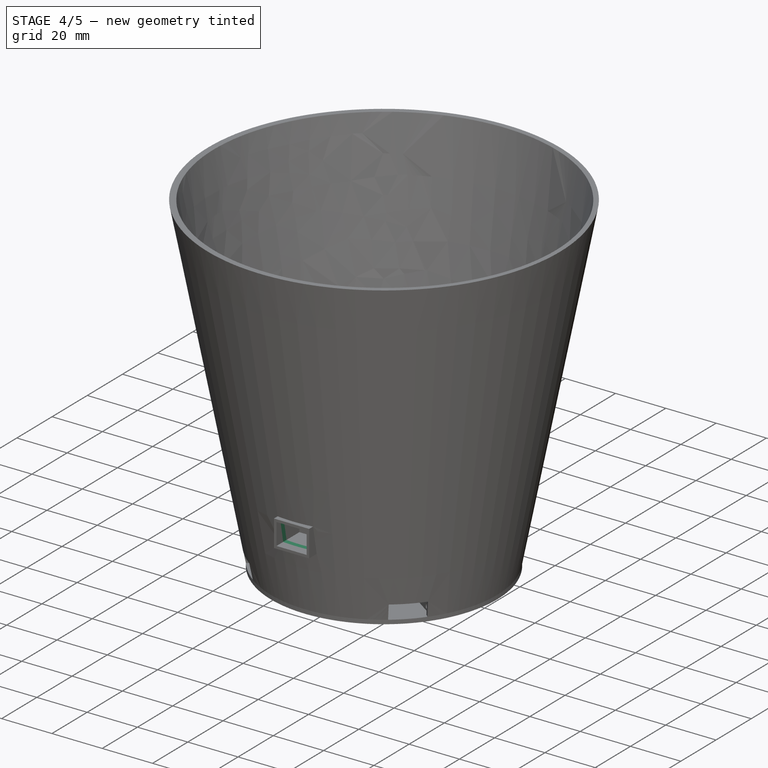
[diagram: stage 4 of 5 — iso view after this stage's code; geometry added in this stage tinted green]
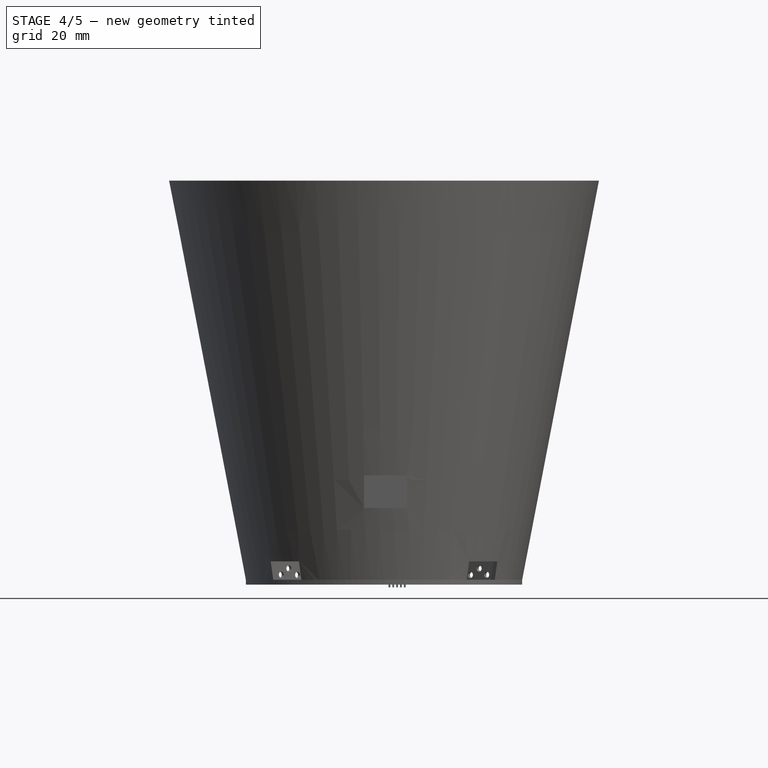
[diagram: stage 4 of 5 — front view after this stage's code; geometry added in this stage tinted green]
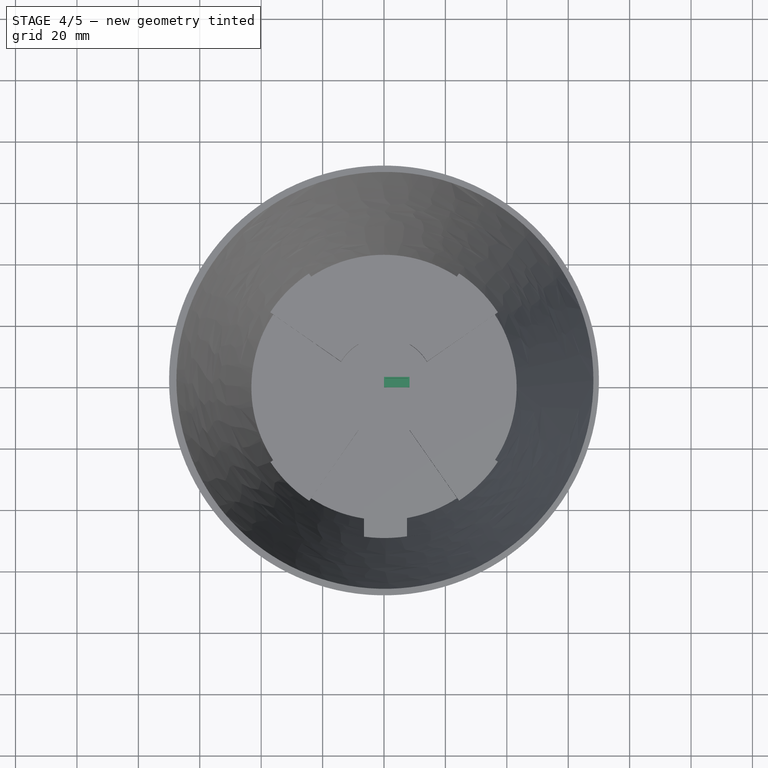
[diagram: stage 4 of 5 — top view after this stage's code; geometry added in this stage tinted green]
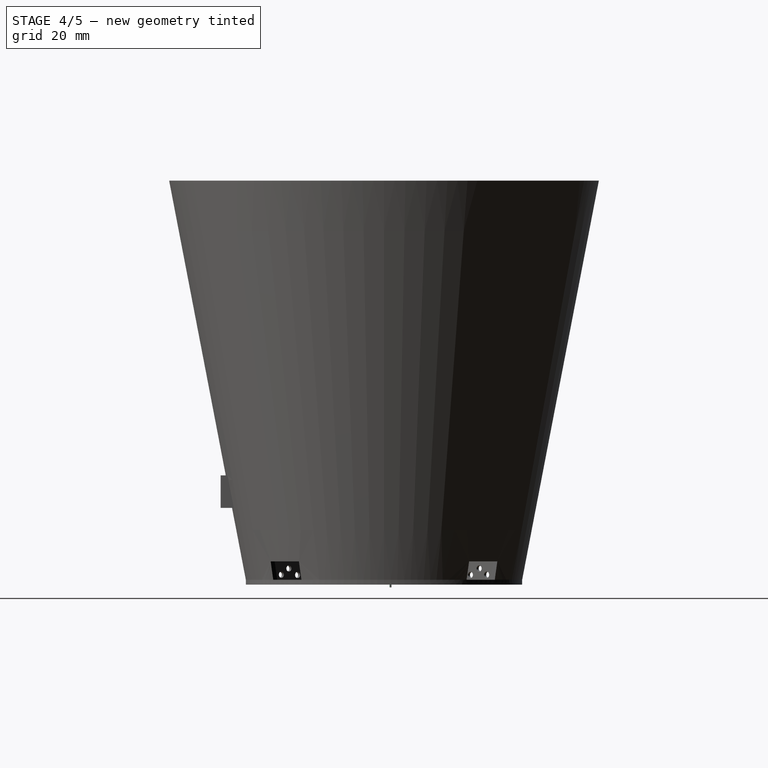
[diagram: stage 4 of 5 — right view after this stage's code; geometry added in this stage tinted green]
FEATURE [Sketcher::SketchObject] Sketch016
  ExternalGeometry = -> [Sketch014,Pad008]
  MapMode = 5
  Placement = pos=(0,-53.2,0) rot=(1,0,0;1.5708rad)
  Support = -> [Pad008]
  sketch-geometry (4):
    g0: LineSegment StartX=-5.5 StartY=33 StartZ=0 EndX=6.5 EndY=33 EndZ=0
    g1: LineSegment StartX=6.5 StartY=33 StartZ=0 EndX=6.5 EndY=24.4 EndZ=0
    g2: LineSegment StartX=6.5 StartY=24.4 StartZ=0 EndX=-5.5 EndY=24.4 EndZ=0
    g3: LineSegment StartX=-5.5 StartY=24.4 StartZ=0 EndX=-5.5 EndY=33 EndZ=0
  constraints (10):
    c: Coincident(g0,g1)
    c: Coincident(g1,g2)
    c: Coincident(g2,g3)
    c: Coincident(g3,g0)
    c: Horizontal(g0)
    c: Horizontal(g2)
    c: Vertical(g1)
    c: Vertical(g3)
    c: Coincident(g0,g-3)
    c: Coincident(g1,g-4)
FEATURE [PartDesign::Pocket] Pocket004
  BaseFeature = -> Pad008
  Length = 7
  Length2 = 100
  Profile = -> Sketch016
  Type = 0
FEATURE [Sketcher::SketchObject] Sketch017
  ExternalGeometry = -> [Pocket004]
  MapMode = 5
  Placement = pos=(0,7.5e-15,34) rot=(0,0,1;0rad)
  Support = -> [Pocket004]
  sketch-geometry (4):
    g0: ArcOfCircle CenterX=0 CenterY=0 CenterZ=0 NormalX=0 NormalY=0 NormalZ=1 AngleXU=0 Radius=49.6421 StartAngle=4.58107 EndAngle=4.86405
    g1: LineSegment StartX=-6.5 StartY=-49.2147 StartZ=0 EndX=-6.5 EndY=-39 EndZ=0
    g2: LineSegment StartX=7.5 StartY=-39 StartZ=0 EndX=7.5 EndY=-49.0722 EndZ=0
    g3: LineSegment StartX=-6.5 StartY=-39 StartZ=0 EndX=7.5 EndY=-39 EndZ=0
  constraints (9):
    c: Coincident(g0,g-1)
    c: Coincident(g0,g-3)
    c: Coincident(g1,g0)
    c: Coincident(g1,g-4)
    c: Coincident(g2,g-6)
    c: Coincident(g2,g0)
    c: Vertical(g2)
    c: Coincident(g3,g1)
    c: Coincident(g3,g2)
FEATURE [Sketcher::SketchObject] Sketch019
  MapMode = 5
  Support = -> [XY_Plane002]
  sketch-geometry (4):
    g0: LineSegment StartX=0 StartY=0 StartZ=0 EndX=8.3 EndY=0 EndZ=0
    g1: LineSegment StartX=8.3 StartY=0 StartZ=0 EndX=8.3 EndY=3.35 EndZ=0
    g2: LineSegment StartX=8.3 StartY=3.35 StartZ=0 EndX=0 EndY=3.35 EndZ=0
    g3: LineSegment StartX=0 StartY=3.35 StartZ=0 EndX=0 EndY=0 EndZ=0
  constraints (11):
    c: Coincident(g0,g1)
    c: Coincident(g1,g2)
    c: Coincident(g2,g3)
    c: Coincident(g3,g0)
    c: Horizontal(g0)
    c: Horizontal(g2)
    c: Vertical(g1)
    c: Vertical(g3)
    c: Coincident(g0,g-1)
    c: DistanceX(g2,g2) = 8.3
    c: DistanceY(g1,g1) = 3.35
FEATURE [PartDesign::Pad] Pad009
  Length = 4.55
  Length2 = 100
  Profile = -> Sketch019
  Type = 0
FEATURE [Sketcher::SketchObject] Sketch020
  ExternalGeometry = -> [Pad009]
  MapMode = 5
  Placement = pos=(0,0,0) rot=(1,0,0;3.14159rad)
  Support = -> [Pad009]
  sketch-geometry (8):
    g0: LineSegment StartX=0 StartY=0 StartZ=0 EndX=0.6 EndY=0 EndZ=0
    g1: LineSegment StartX=0.6 StartY=0 StartZ=0 EndX=0.6 EndY=-3.35 EndZ=0
    g2: LineSegment StartX=0.6 StartY=-3.35 StartZ=0 EndX=0 EndY=-3.35 EndZ=0
    g3: LineSegment StartX=0 StartY=-3.35 StartZ=0 EndX=0 EndY=0 EndZ=0
    g4: LineSegment StartX=8.3 StartY=0 StartZ=0 EndX=7.7 EndY=0 EndZ=0
    g5: LineSegment StartX=7.7 StartY=0 StartZ=0 EndX=7.7 EndY=-3.35 EndZ=0
    g6: LineSegment StartX=7.7 StartY=-3.35 StartZ=0 EndX=8.3 EndY=-3.35 EndZ=0
    g7: LineSegment StartX=8.3 StartY=-3.35 StartZ=0 EndX=8.3 EndY=0 EndZ=0
  constraints (20):
    c: Coincident(g0,g1)
    c: Coincident(g1,g2)
    c: Coincident(g2,g3)
    c: Coincident(g3,g0)
    c: Horizontal(g0)
    c: Horizontal(g2)
    c: Vertical(g1)
    c: Coincident(g0,g-1)
    c: Coincident(g4,g5)
    c: Coincident(g5,g6)
    c: Coincident(g6,g7)
    c: Coincident(g7,g4)
    c: Horizontal(g4)
    c: Horizontal(g6)
    c: Vertical(g5)
    c: Coincident(g4,g-4)
    c: Coincident(g6,g-4)
    c: Coincident(g2,g-3)
    c: DistanceX(g4,g4) = 0.6
    c: Equal(g0,g4)
FEATURE [PartDesign::Pad] Pad010
  BaseFeature = -> Pad009
  Length = 0.6
  Length2 = 100
  Profile = -> Sketch020
  Type = 0
FEATURE [Sketcher::SketchObject] Sketch021
  ExternalGeometry = -> [Pad010]
  MapMode = 5
  Placement = pos=(0,0,4.55) rot=(0,0,1;0rad)
  Support = -> [Pad010]
  sketch-geometry (4):
    g0: LineSegment StartX=0.45 StartY=2.9 StartZ=0 EndX=7.85 EndY=2.9 EndZ=0
    g1: LineSegment StartX=7.85 StartY=2.9 StartZ=0 EndX=7.85 EndY=0.45 EndZ=0
    g2: LineSegment StartX=7.85 StartY=0.45 StartZ=0 EndX=0.45 EndY=0.45 EndZ=0
    g3: LineSegment StartX=0.45 StartY=0.45 StartZ=0 EndX=0.45 EndY=2.9 EndZ=0
  constraints (12):
    c: Coincident(g0,g1)
    c: Coincident(g1,g2)
    c: Coincident(g2,g3)
    c: Coincident(g3,g0)
    c: Horizontal(g0)
    c: Horizontal(g2)
    c: Vertical(g1)
    c: Vertical(g3)
    c: DistanceX(g-3,g0) = 0.45
    c: DistanceX(g1,g-4) = 0.45
    c: DistanceY(g0,g-4) = 0.45
    c: DistanceY(g-1,g2) = 0.45
FEATURE [PartDesign::Pocket] Pocket005
  BaseFeature = -> Pad010
  Length = 3.9
  Length2 = 100
  Profile = -> Sketch021
  Type = 0
FEATURE [Sketcher::SketchObject] Sketch022
  ExternalGeometry = -> [Pocket005]
  MapMode = 5
  Placement = pos=(0,0,0) rot=(1,0,0;1.5708rad)
  Support = -> [Pocket005]
  sketch-geometry (4):
    g0: LineSegment StartX=0.7 StartY=4.55 StartZ=0 EndX=7.6 EndY=4.55 EndZ=0
    g1: LineSegment StartX=7.6 StartY=4.55 StartZ=0 EndX=7.6 EndY=2.7 EndZ=0
    g2: LineSegment StartX=7.6 StartY=2.7 StartZ=0 EndX=0.7 EndY=2.7 EndZ=0
    g3: LineSegment StartX=0.7 StartY=2.7 StartZ=0 EndX=0.7 EndY=4.55 EndZ=0
  constraints (12):
    c: Coincident(g0,g1)
    c: Coincident(g1,g2)
    c: Coincident(g2,g3)
    c: Coincident(g3,g0)
    c: Horizontal(g0)
    c: Horizontal(g2)
    c: Vertical(g1)
    c: Vertical(g3)
    c: PointOnObject(g0,g-4)
    c: DistanceX(g0,g-5) = 0.7
    c: DistanceX(g-4,g0) = 0.7
    c: DistanceY(g-1,g2) = 2.7
FEATURE [PartDesign::Pocket] Pocket006
  BaseFeature = -> Pocket005
  Length = 0
  Length2 = 100
  Profile = -> Sketch022
  Type = 3
  UpToFace = -> Pocket005 [Face16]
FEATURE [Sketcher::SketchObject] Sketch023
  ExternalGeometry = -> [Pocket006]
  MapMode = 5
  Placement = pos=(0,0,0) rot=(1,0,0;3.14159rad)
  Support = -> [Pocket006]
  sketch-geometry (26):
    g0: LineSegment StartX=1.46363 StartY=-1.85 StartZ=0 EndX=2.06363 EndY=-1.85 EndZ=0
    g1: LineSegment StartX=2.06363 StartY=-1.85 StartZ=0 EndX=2.06363 EndY=-2.45 EndZ=0
    g2: LineSegment StartX=2.06363 StartY=-2.45 StartZ=0 EndX=1.46363 EndY=-2.45 EndZ=0
    g3: LineSegment StartX=1.46363 StartY=-2.45 StartZ=0 EndX=1.46363 EndY=-1.85 EndZ=0
    g4: LineSegment StartX=2.71363 StartY=-1.85 StartZ=0 EndX=3.31363 EndY=-1.85 EndZ=0
    g5: LineSegment StartX=3.31363 StartY=-1.85 StartZ=0 EndX=3.31363 EndY=-2.45 EndZ=0
    g6: LineSegment StartX=3.31363 StartY=-2.45 StartZ=0 EndX=2.71363 EndY=-2.45 EndZ=0
    g7: LineSegment StartX=2.71363 StartY=-2.45 StartZ=0 EndX=2.71363 EndY=-1.85 EndZ=0
    g8: LineSegment StartX=3.96363 StartY=-1.85 StartZ=0 EndX=4.56363 EndY=-1.85 EndZ=0
    g9: LineSegment StartX=4.56363 StartY=-1.85 StartZ=0 EndX=4.56363 EndY=-2.45 EndZ=0
    g10: LineSegment StartX=4.56363 StartY=-2.45 StartZ=0 EndX=3.96363 EndY=-2.45 EndZ=0
    g11: LineSegment StartX=3.96363 StartY=-2.45 StartZ=0 EndX=3.96363 EndY=-1.85 EndZ=0
    g12: LineSegment StartX=5.21363 StartY=-1.85 StartZ=0 EndX=5.81363 EndY=-1.85 EndZ=0
    g13: LineSegment StartX=5.81363 StartY=-1.85 StartZ=0 EndX=5.81363 EndY=-2.45 EndZ=0
    g14: LineSegment StartX=5.81363 StartY=-2.45 StartZ=0 EndX=5.21363 EndY=-2.45 EndZ=0
    g15: LineSegment StartX=5.21363 StartY=-2.45 StartZ=0 EndX=5.21363 EndY=-1.85 EndZ=0
    g16: LineSegment StartX=6.46363 StartY=-1.85 StartZ=0 EndX=7.06363 EndY=-1.85 EndZ=0
    g17: LineSegment StartX=7.06363 StartY=-1.85 StartZ=0 EndX=7.06363 EndY=-2.45 EndZ=0
    g18: LineSegment StartX=7.06363 StartY=-2.45 StartZ=0 EndX=6.46363 EndY=-2.45 EndZ=0
    g19: LineSegment StartX=6.46363 StartY=-2.45 StartZ=0 EndX=6.46363 EndY=-1.85 EndZ=0
    g20: LineSegment [constr] StartX=2.06363 StartY=-1.85 StartZ=0 EndX=2.71363 EndY=-1.85 EndZ=0
    g21: LineSegment [constr] StartX=3.31363 StartY=-1.85 StartZ=0 EndX=3.96363 EndY=-1.85 EndZ=0
    g22: LineSegment [constr] StartX=4.56363 StartY=-1.85 StartZ=0 EndX=5.21363 EndY=-1.85 EndZ=0
    g23: LineSegment [constr] StartX=5.81363 StartY=-1.85 StartZ=0 EndX=6.46363 EndY=-1.85 EndZ=0
    g24: LineSegment [constr] StartX=1.46363 StartY=-1.85 StartZ=0 EndX=0.6 EndY=-1.85 EndZ=0
    g25: LineSegment [constr] StartX=7.06363 StartY=-1.85 StartZ=0 EndX=7.92726 EndY=-1.85 EndZ=0
  constraints (73):
    c: Coincident(g0,g1)
    c: Coincident(g1,g2)
    c: Coincident(g2,g3)
    c: Coincident(g3,g0)
    c: Horizontal(g0)
    c: Horizontal(g2)
    c: Vertical(g1)
    c: Vertical(g3)
    c: Coincident(g4,g5)
    c: Coincident(g5,g6)
    c: Coincident(g6,g7)
    c: Coincident(g7,g4)
    c: Horizontal(g4)
    c: Horizontal(g6)
    c: Vertical(g5)
    c: Vertical(g7)
    c: Coincident(g8,g9)
    c: Coincident(g9,g10)
    c: Coincident(g10,g11)
    c: Coincident(g11,g8)
    c: Horizontal(g8)
    c: Horizontal(g10)
    c: Vertical(g9)
    c: Vertical(g11)
    c: Coincident(g12,g13)
    c: Coincident(g13,g14)
    c: Coincident(g14,g15)
    c: Coincident(g15,g12)
    c: Horizontal(g12)
    c: Horizontal(g14)
    c: Vertical(g13)
    c: Vertical(g15)
    c: Coincident(g16,g17)
    c: Coincident(g17,g18)
    c: Coincident(g18,g19)
    c: Coincident(g19,g16)
    c: Horizontal(g16)
    c: Horizontal(g18)
    c: Vertical(g17)
    c: Vertical(g19)
    c: Coincident(g20,g0)
    c: Coincident(g20,g4)
    c: Coincident(g21,g4)
    c: Coincident(g21,g8)
    c: Coincident(g22,g8)
    c: Coincident(g22,g12)
    c: Coincident(g23,g12)
    c: Coincident(g23,g16)
    c: Horizontal(g23)
    c: Horizontal(g22)
    c: Horizontal(g21)
    c: Horizontal(g20)
    c: Equal(g0,g1)
    c: Equal(g1,g4)
    c: Equal(g4,g5)
    c: Equal(g5,g8)
    c: Equal(g8,g9)
    c: Equal(g9,g12)
    c: Equal(g12,g13)
    c: Equal(g13,g16)
    c: Equal(g16,g17)
    c: DistanceX(g0,g0) = 0.6
    c: DistanceX(g2,g6) = 1.25
    c: Equal(g22,g21)
    c: Equal(g21,g20)
    c: Coincident(g24,g0)
    c: PointOnObject(g24,g-3)
    c: Horizontal(g24)
    c: Coincident(g25,g16)
    c: Horizontal(g25)
    c: Equal(g23,g22)
    c: Equal(g25,g24)
    c: DistanceY(g-3,g0) = 1.5
FEATURE [PartDesign::Pad] Pad011
  BaseFeature = -> Pocket006
  Length = 2.5
  Length2 = 100
  Profile = -> Sketch023
  Type = 0
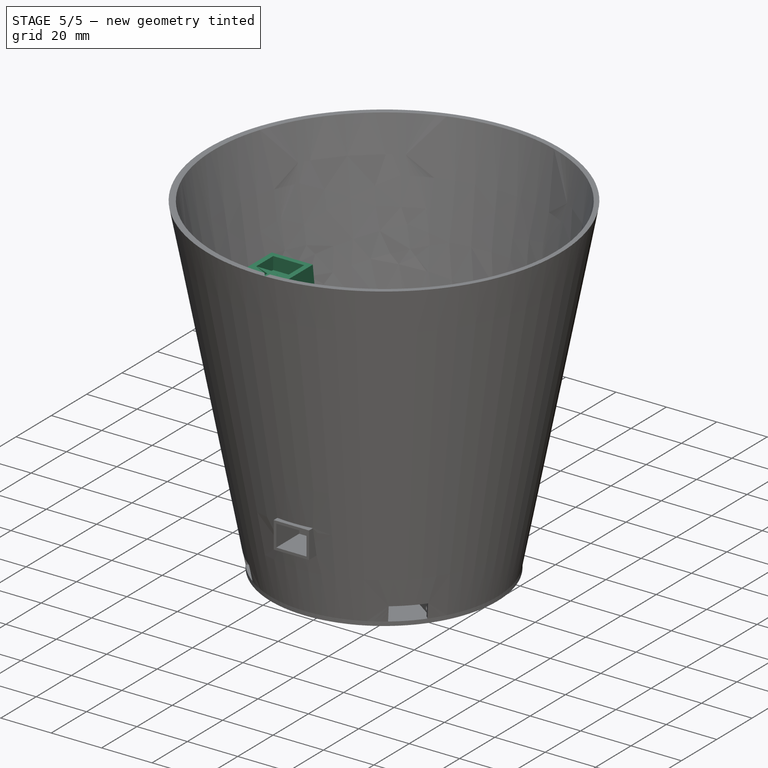
[diagram: stage 5 of 5 — iso view after this stage's code; geometry added in this stage tinted green]
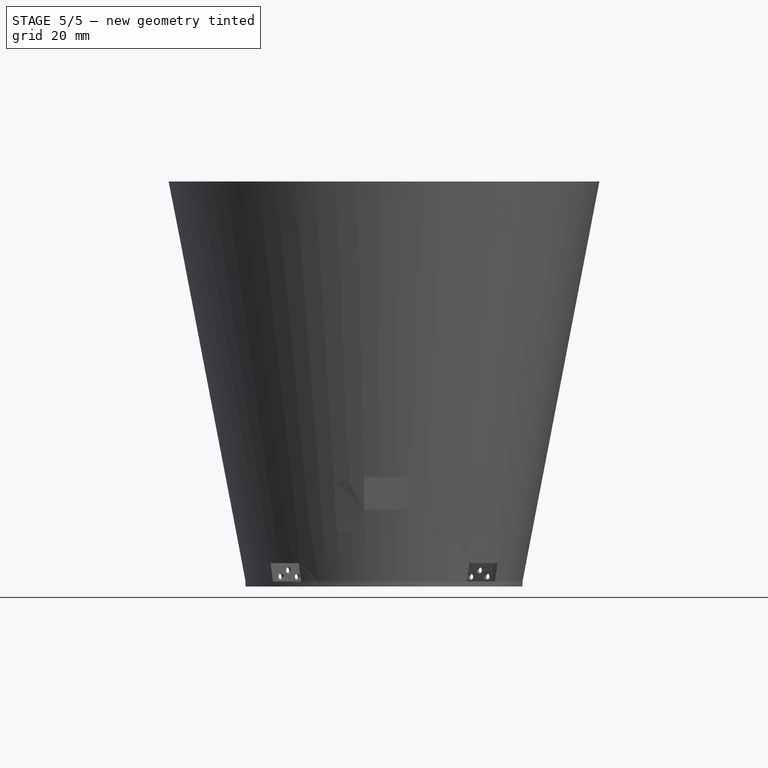
[diagram: stage 5 of 5 — front view after this stage's code; geometry added in this stage tinted green]
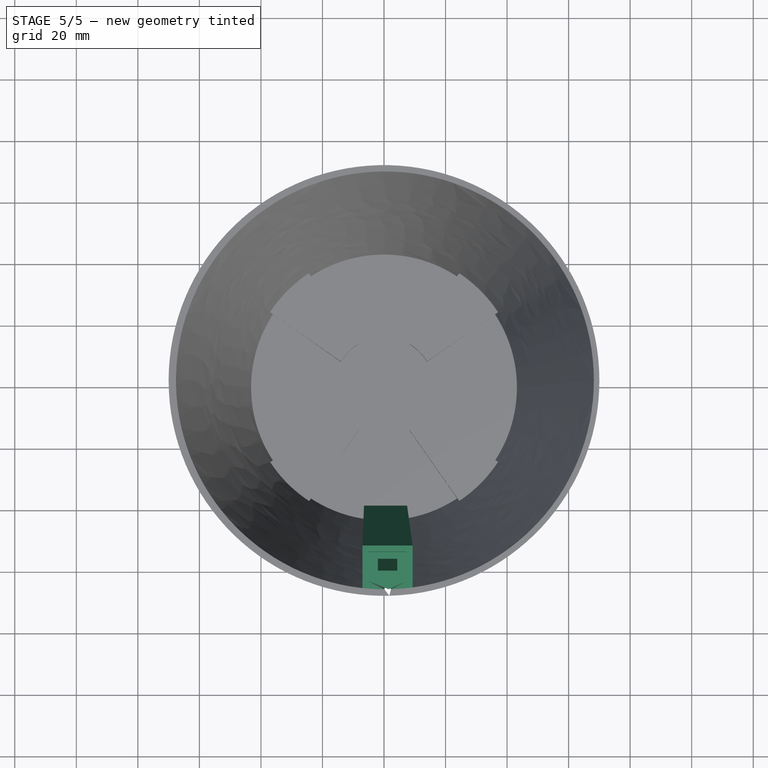
[diagram: stage 5 of 5 — top view after this stage's code; geometry added in this stage tinted green]
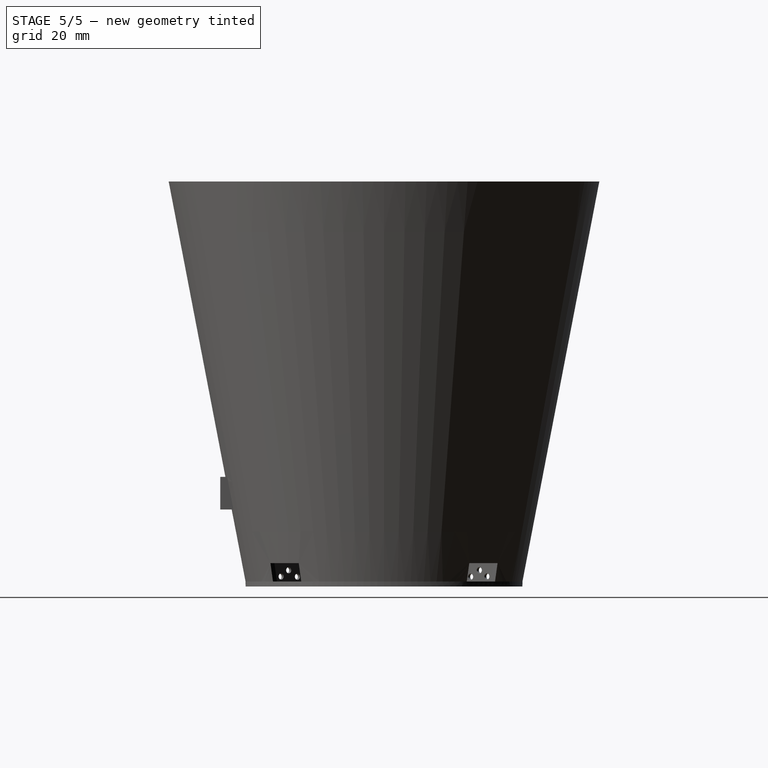
[diagram: stage 5 of 5 — right view after this stage's code; geometry added in this stage tinted green]
FEATURE [Sketcher::SketchObject] Sketch024
  ExternalGeometry = -> [Pad011]
  MapMode = 5
  Placement = pos=(0,0,0) rot=(1,0,0;3.14159rad)
  Support = -> [Pad011]
  sketch-geometry (20):
    g0: LineSegment StartX=1.46363 StartY=-1.85 StartZ=0 EndX=2.06363 EndY=-1.85 EndZ=0
    g1: LineSegment StartX=2.06363 StartY=-1.85 StartZ=0 EndX=2.06363 EndY=-2.45 EndZ=0
    g2: LineSegment StartX=2.06363 StartY=-2.45 StartZ=0 EndX=1.46363 EndY=-2.45 EndZ=0
    g3: LineSegment StartX=1.46363 StartY=-2.45 StartZ=0 EndX=1.46363 EndY=-1.85 EndZ=0
    g4: LineSegment StartX=2.71363 StartY=-1.85 StartZ=0 EndX=3.31363 EndY=-1.85 EndZ=0
    g5: LineSegment StartX=3.31363 StartY=-1.85 StartZ=0 EndX=3.31363 EndY=-2.45 EndZ=0
    g6: LineSegment StartX=3.31363 StartY=-2.45 StartZ=0 EndX=2.71363 EndY=-2.45 EndZ=0
    g7: LineSegment StartX=2.71363 StartY=-2.45 StartZ=0 EndX=2.71363 EndY=-1.85 EndZ=0
    g8: LineSegment StartX=3.96363 StartY=-1.85 StartZ=0 EndX=4.56363 EndY=-1.85 EndZ=0
    g9: LineSegment StartX=4.56363 StartY=-1.85 StartZ=0 EndX=4.56363 EndY=-2.45 EndZ=0
    g10: LineSegment StartX=4.56363 StartY=-2.45 StartZ=0 EndX=3.96363 EndY=-2.45 EndZ=0
    g11: LineSegment StartX=3.96363 StartY=-2.45 StartZ=0 EndX=3.96363 EndY=-1.85 EndZ=0
    g12: LineSegment StartX=5.21363 StartY=-1.85 StartZ=0 EndX=5.81363 EndY=-1.85 EndZ=0
    g13: LineSegment StartX=5.81363 StartY=-1.85 StartZ=0 EndX=5.81363 EndY=-2.45 EndZ=0
    g14: LineSegment StartX=5.81363 StartY=-2.45 StartZ=0 EndX=5.21363 EndY=-2.45 EndZ=0
    g15: LineSegment StartX=5.21363 StartY=-2.45 StartZ=0 EndX=5.21363 EndY=-1.85 EndZ=0
    g16: LineSegment StartX=6.46363 StartY=-1.85 StartZ=0 EndX=7.06363 EndY=-1.85 EndZ=0
    g17: LineSegment StartX=7.06363 StartY=-1.85 StartZ=0 EndX=7.06363 EndY=-2.45 EndZ=0
    g18: LineSegment StartX=7.06363 StartY=-2.45 StartZ=0 EndX=6.46363 EndY=-2.45 EndZ=0
    g19: LineSegment StartX=6.46363 StartY=-2.45 StartZ=0 EndX=6.46363 EndY=-1.85 EndZ=0
  constraints (50):
    c: Coincident(g0,g1)
    c: Coincident(g1,g2)
    c: Coincident(g2,g3)
    c: Coincident(g3,g0)
    c: Horizontal(g0)
    c: Horizontal(g2)
    c: Vertical(g1)
    c: Vertical(g3)
    c: Coincident(g0,g-3)
    c: Coincident(g1,g-4)
    c: Coincident(g4,g5)
    c: Coincident(g5,g6)
    c: Coincident(g6,g7)
    c: Coincident(g7,g4)
    c: Horizontal(g4)
    c: Horizontal(g6)
    c: Vertical(g5)
    c: Vertical(g7)
    c: Coincident(g4,g-5)
    c: Coincident(g5,g-6)
    c: Coincident(g8,g9)
    c: Coincident(g9,g10)
    c: Coincident(g10,g11)
    c: Coincident(g11,g8)
    c: Horizontal(g8)
    c: Horizontal(g10)
    c: Vertical(g9)
    c: Vertical(g11)
    c: Coincident(g8,g-7)
    c: Coincident(g9,g-8)
    c: Coincident(g12,g13)
    c: Coincident(g13,g14)
    c: Coincident(g14,g15)
    c: Coincident(g15,g12)
    c: Horizontal(g12)
    c: Horizontal(g14)
    c: Vertical(g13)
    c: Vertical(g15)
    c: Coincident(g12,g-9)
    c: Coincident(g13,g-10)
    c: Coincident(g16,g17)
    c: Coincident(g17,g18)
    c: Coincident(g18,g19)
    c: Coincident(g19,g16)
    c: Horizontal(g16)
    c: Horizontal(g18)
    c: Vertical(g17)
    c: Vertical(g19)
    c: Coincident(g16,g-11)
    c: Coincident(g17,g-12)
FEATURE [PartDesign::Pad] Pad012
  BaseFeature = -> Pad011
  Length = 3.75
  Length2 = 100
  Profile = -> Sketch024
  Reversed = true
  Type = 0
FEATURE [Sketcher::SketchObject] Sketch025
  ExternalGeometry = -> [Pad012]
  MapMode = 5
  Placement = pos=(0,3.35,0) rot=(0,0.707107,0.707107;3.14159rad)
  Support = -> [Pad012]
  sketch-geometry (11):
    g0: LineSegment StartX=-6.67 StartY=2.95 StartZ=0 EndX=-5.42 EndY=2.95 EndZ=0
    g1: LineSegment StartX=-5.42 StartY=2.95 StartZ=0 EndX=-5.42 EndY=0 EndZ=0
    g2: LineSegment StartX=-5.42 StartY=0 StartZ=0 EndX=-6.67 EndY=0 EndZ=0
    g3: LineSegment StartX=-6.67 StartY=0 StartZ=0 EndX=-6.67 EndY=2.95 EndZ=0
    g4: LineSegment StartX=-2.88 StartY=2.95 StartZ=0 EndX=-1.63 EndY=2.95 EndZ=0
    g5: LineSegment StartX=-1.63 StartY=2.95 StartZ=0 EndX=-1.63 EndY=0 EndZ=0
    g6: LineSegment StartX=-1.63 StartY=0 StartZ=0 EndX=-2.88 EndY=0 EndZ=0
    g7: LineSegment StartX=-2.88 StartY=0 StartZ=0 EndX=-2.88 EndY=2.95 EndZ=0
    g8: LineSegment [constr] StartX=-5.42 StartY=2.95 StartZ=0 EndX=-2.88 EndY=2.95 EndZ=0
    g9: LineSegment [constr] StartX=-1.63 StartY=2.95 StartZ=0 EndX=0 EndY=2.95 EndZ=0
    g10: LineSegment [constr] StartX=-6.67 StartY=2.95 StartZ=0 EndX=-8.3 EndY=2.95 EndZ=0
  constraints (32):
    c: Coincident(g0,g1)
    c: Coincident(g1,g2)
    c: Coincident(g2,g3)
    c: Coincident(g3,g0)
    c: Horizontal(g0)
    c: Horizontal(g2)
    c: Vertical(g1)
    c: Vertical(g3)
    c: Coincident(g4,g5)
    c: Coincident(g5,g6)
    c: Coincident(g6,g7)
    c: Coincident(g7,g4)
    c: Horizontal(g4)
    c: Horizontal(g6)
    c: Vertical(g5)
    c: Vertical(g7)
    c: Equal(g0,g4)
    c: Equal(g1,g7)
    c: Coincident(g8,g0)
    c: Coincident(g8,g4)
    c: Horizontal(g8)
    c: DistanceX(g4,g4) = 1.25
    c: DistanceY(g0,g-3) = 1.6
    c: PointOnObject(g2,g-4)
    c: DistanceX(g8,g8) = 2.54
    c: Coincident(g9,g4)
    c: PointOnObject(g9,g-5)
    c: Horizontal(g9)
    c: Coincident(g10,g0)
    c: PointOnObject(g10,g-6)
    c: Horizontal(g10)
    c: Equal(g10,g9)
FEATURE [PartDesign::Pocket] Pocket007
  BaseFeature = -> Pad012
  Length = 0
  Length2 = 100
  Profile = -> Sketch025
  Type = 3
  UpToFace = -> Pad012 [Face40]
FEATURE [PartDesign::Body] Body002  label="Male"
  Group = -> [Sketch019,Pad009,Sketch020,Pad010,Sketch021,Pocket005,Sketch022,Pocket006,Sketch023,Pad011,Sketch024,Pad012,Sketch025,Pocket007]
  Origin = -> Origin002
  Placement = pos=(-3,-62,126) rot=(0,0,1;0rad)
  Tip = -> Pocket007
FEATURE [PartDesign::ShapeBinder] ShapeBinder001
  Placement = pos=(-3,-62,126) rot=(0,0,1;0rad)
  Support = -> [Body002]
  TraceSupport = false
FEATURE [Sketcher::SketchObject] Sketch018
  AttachmentOffset = pos=(0,0,96) rot=(0,0,1;0rad)
  ExternalGeometry = -> [Pocket004,ShapeBinder001]
  MapMode = 5
  Placement = pos=(0,2.89e-14,130) rot=(0,0,1;0rad)
  Support = -> [Pocket004]
  sketch-geometry (4):
    g0: LineSegment StartX=-7 StartY=-53.65 StartZ=0 EndX=9.3 EndY=-53.65 EndZ=0
    g1: LineSegment StartX=9.3 StartY=-53.65 StartZ=0 EndX=9.3 EndY=-67.2704 EndZ=0
    g2: LineSegment StartX=-7 StartY=-67.477 StartZ=0 EndX=-7 EndY=-53.65 EndZ=0
    g3: ArcOfCircle CenterX=0.295828 CenterY=0.0341492 CenterZ=0 NormalX=0 NormalY=0 NormalZ=1 AngleXU=0 Radius=67.9042 StartAngle=4.60474 EndAngle=4.84538
  constraints (12):
    c: Coincident(g0,g1)
    c: Coincident(g2,g0)
    c: Horizontal(g0)
    c: Vertical(g1)
    c: Vertical(g2)
    c: Coincident(g3,g-3)
    c: PointOnObject(g3,g-3)
    c: Coincident(g2,g3)
    c: Coincident(g1,g3)
    c: DistanceX(g-6,g0) = 4
    c: DistanceX(g0,g-7) = 4
    c: DistanceY(g-6,g0) = 5
FEATURE [PartDesign::AdditiveLoft] AdditiveLoft001
  BaseFeature = -> Pocket004
  Closed = false
  Profile = -> Sketch017
  Ruled = false
  Sections = -> [Sketch018]
FEATURE [Sketcher::SketchObject] Sketch026
  ExternalGeometry = -> [AdditiveLoft001]
  MapMode = 5
  Placement = pos=(-1.4e-15,2.66e-13,130) rot=(0,0,1;0rad)
  Support = -> [AdditiveLoft001]
  sketch-geometry (4):
    g0: LineSegment StartX=-2 StartY=-58.65 StartZ=0 EndX=4.3 EndY=-58.65 EndZ=0
    g1: LineSegment StartX=4.3 StartY=-58.65 StartZ=0 EndX=4.3 EndY=-62.477 EndZ=0
    g2: LineSegment StartX=4.3 StartY=-62.477 StartZ=0 EndX=-2 EndY=-62.477 EndZ=0
    g3: LineSegment StartX=-2 StartY=-62.477 StartZ=0 EndX=-2 EndY=-58.65 EndZ=0
  constraints (12):
    c: Coincident(g0,g1)
    c: Coincident(g1,g2)
    c: Coincident(g2,g3)
    c: Coincident(g3,g0)
    c: Horizontal(g0)
    c: Horizontal(g2)
    c: Vertical(g1)
    c: Vertical(g3)
    c: DistanceX(g0,g-5) = 5
    c: DistanceX(g-4,g0) = 5
    c: DistanceY(g0,g-5) = 5
    c: DistanceY(g-4,g2) = 5
FEATURE [Sketcher::SketchObject] Sketch027
  AttachmentOffset = pos=(0,0,-7) rot=(0,0,1;0rad)
  MapMode = 5
  Placement = pos=(0.5,0,0) rot=(0.57735,-0.57735,-0.57735;2.0944rad)
  Support = -> [Pocket004]
  sketch-geometry (7):
    g0-g3: Circle [constr] x4 (B-spline internal-alignment scaffolding for g4; pole/knot coordinates omitted)
    g4: BSplineCurve PolesCount=4 KnotsCount=2 Degree=3 IsPeriodic=0
    g5: GeomPoint [constr] X=47.1171 Y=31.2729 Z=0
    g6: GeomPoint [constr] X=60.6489 Y=130 Z=0
  constraints (7):
    c: Radius(g0) = 0.4
    c: Equal(g0,g1)
    c: Equal(g0,g2)
    c: Equal(g0,g3)
    c: InternalAlignment(g0-g3 -> g4) x4
    c: InternalAlignment(g5,g4)
    c: InternalAlignment(g6,g4)
FEATURE [PartDesign::SubtractivePipe] SubtractivePipe
  AuxilleryCurvelinear = true
  AuxillerySpineTangent = false
  BaseFeature = -> AdditiveLoft001
  Binormal = (0,0,0)
  Mode = 0
  Profile = -> Sketch026
  Spine = -> Sketch027 [Edge1]
  SpineTangent = false
  Transformation = 0
  Transition = 0
FEATURE [Sketcher::SketchObject] Sketch028
  ExternalGeometry = -> [SubtractivePipe]
  MapMode = 5
  Placement = pos=(-1.4e-15,2.66e-13,130) rot=(0,0,1;0rad)
  Support = -> [SubtractivePipe]
  sketch-geometry (4):
    g0: LineSegment StartX=-5 StartY=-55.65 StartZ=0 EndX=7.3 EndY=-55.65 EndZ=0
    g1: LineSegment StartX=7.3 StartY=-55.65 StartZ=0 EndX=7.3 EndY=-65.2704 EndZ=0
    g2: LineSegment StartX=7.3 StartY=-65.2704 StartZ=0 EndX=-5 EndY=-65.2704 EndZ=0
    g3: LineSegment StartX=-5 StartY=-65.2704 StartZ=0 EndX=-5 EndY=-55.65 EndZ=0
  constraints (12):
    c: Coincident(g0,g1)
    c: Coincident(g1,g2)
    c: Coincident(g2,g3)
    c: Coincident(g3,g0)
    c: Horizontal(g0)
    c: Horizontal(g2)
    c: Vertical(g1)
    c: Vertical(g3)
    c: DistanceX(g0,g-4) = 2
    c: DistanceX(g-5,g0) = 2
    c: DistanceY(g0,g-4) = 2
    c: DistanceY(g-4,g1) = 2
FEATURE [PartDesign::Pocket] Pocket009
  BaseFeature = -> SubtractivePipe
  Length = 5
  Length2 = 100
  Profile = -> Sketch028
  Type = 0
FEATURE [PartDesign::Body] Body001
  Group = -> [Sketch,Pad,Sketch001,Sketch002,AdditiveLoft,Sketch003,Pad001,Sketch004,Pocket,Sketch005,Pocket001,Sketch006,Pocket002,Sketch007,Pocket003,Sketch008,Groove,Sketch009,Pad002,ShapeBinder,Sketch014,Pad007,Sketch015,Pad008,Sketch016,Pocket004,Sketch017,ShapeBinder001,Sketch018,AdditiveLoft001,Sketch026,Sketch027,SubtractivePipe,Sketch028,Pocket009]
  Origin = -> Origin001
  Tip = -> Pocket009
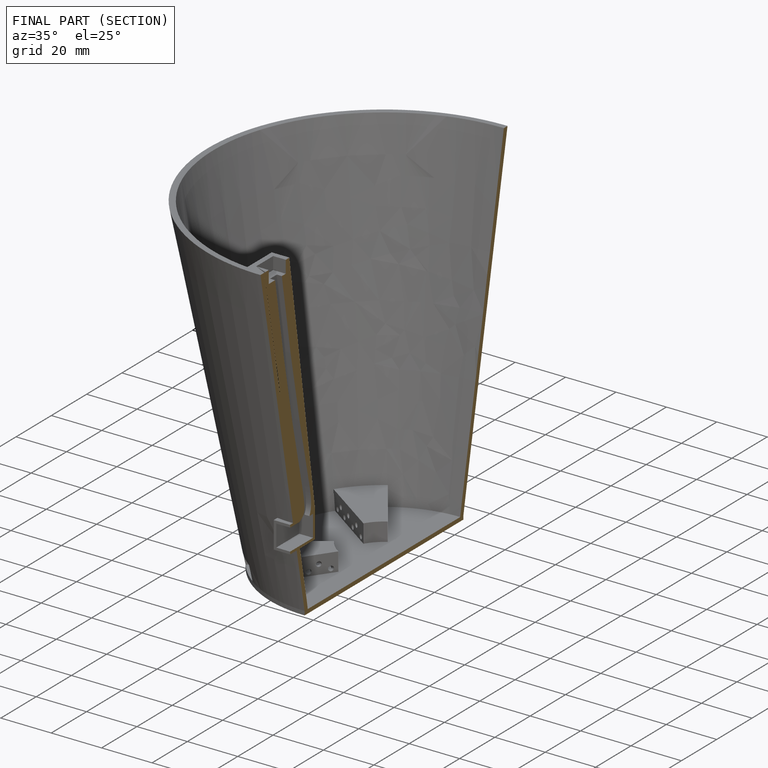
[diagram: finished part — half-section view (interior)]
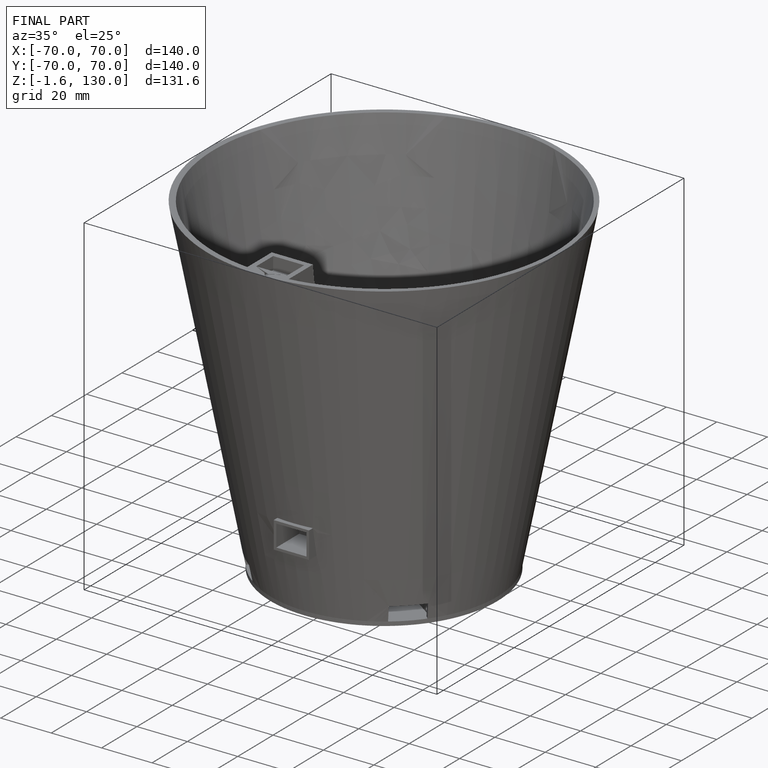
[diagram: finished part — iso view with bounding-box wireframe]
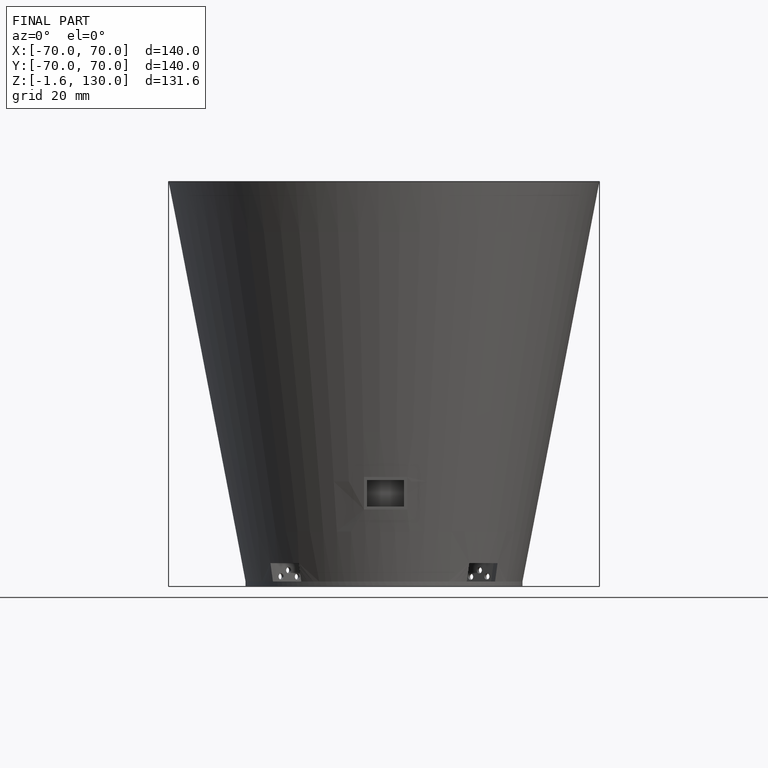
[diagram: finished part — front view with bounding-box wireframe]
